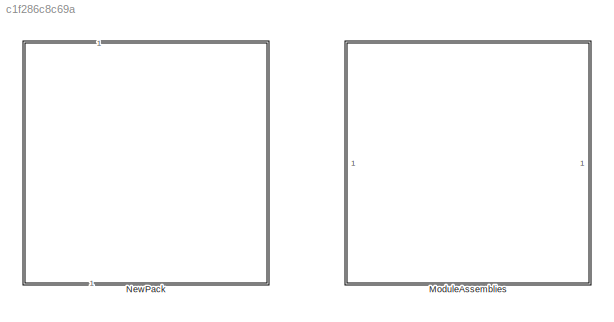
MODEL slx_c1f286c8c69a
KIND library
CONFIG AbsTol = auto
CONFIG EnableMultiTasking = off
CONFIG FixedStep = auto
CONFIG MaxStep = auto
CONFIG MinStep = auto
CONFIG RelTol = 1e-3
CONFIG SampleTimeConstraint = Unconstrained
CONFIG SolverName = VariableStepAuto
CONFIG StartTime = 0.0
CONFIG StopTime = 10.0
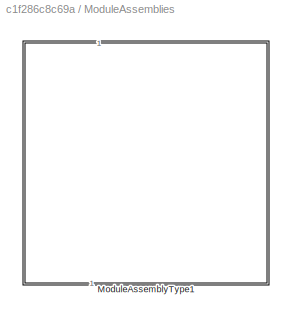
BLOCK [SubSystem] ModuleAssemblies
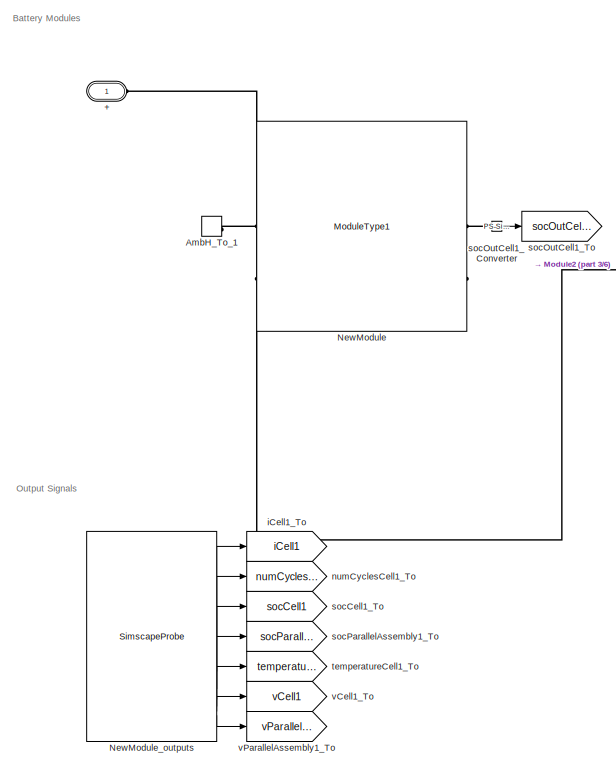
[diagram: ModuleAssemblies/ModuleAssemblyType1 - part 1/6, top left region]
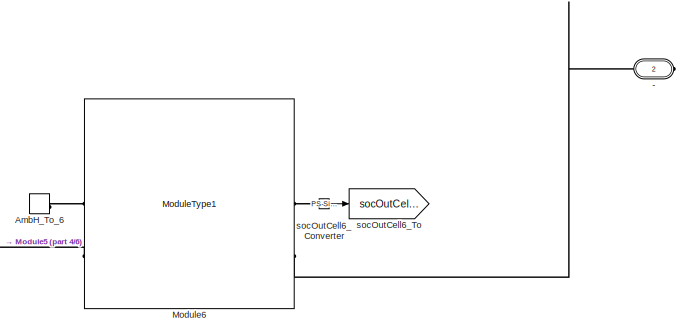
[diagram: ModuleAssemblies/ModuleAssemblyType1 - part 2/6, top right region]
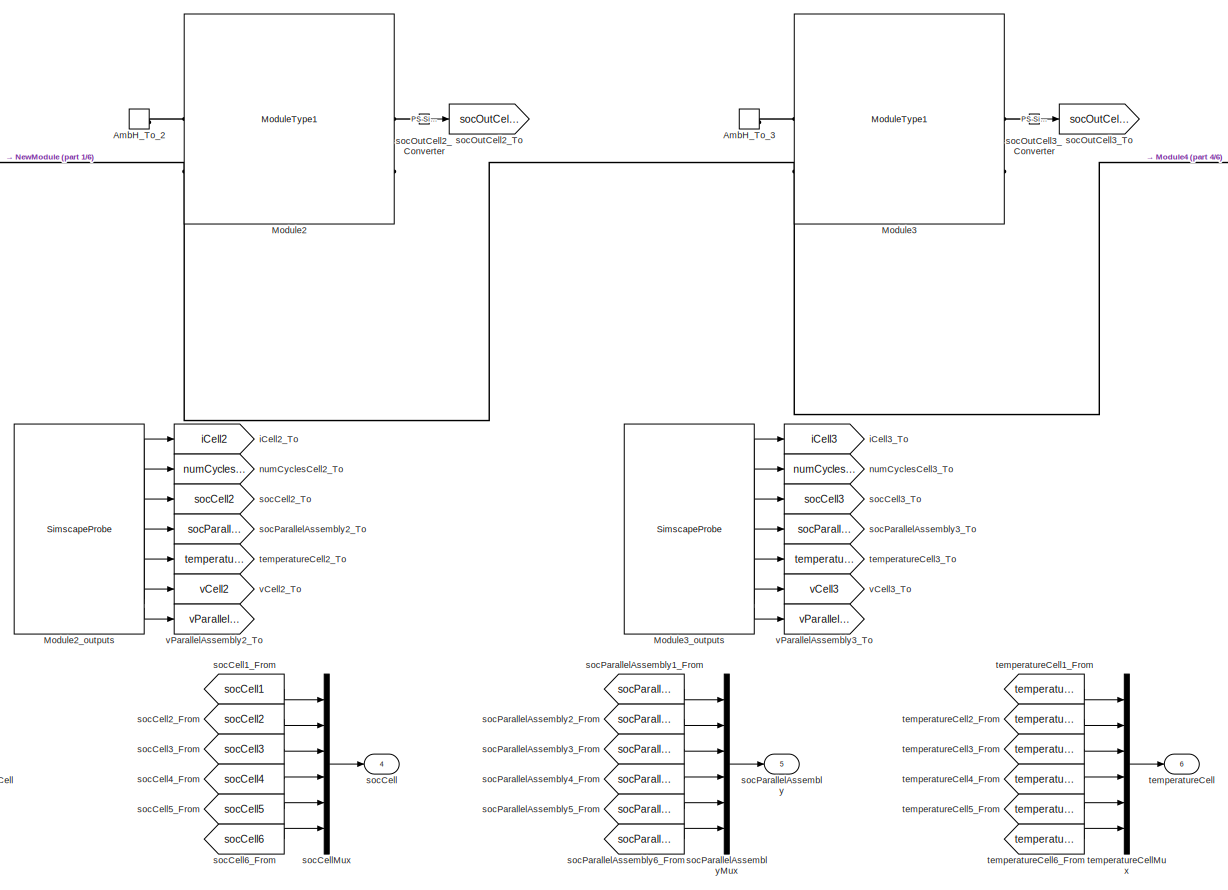
[diagram: ModuleAssemblies/ModuleAssemblyType1 - part 3/6, central region]
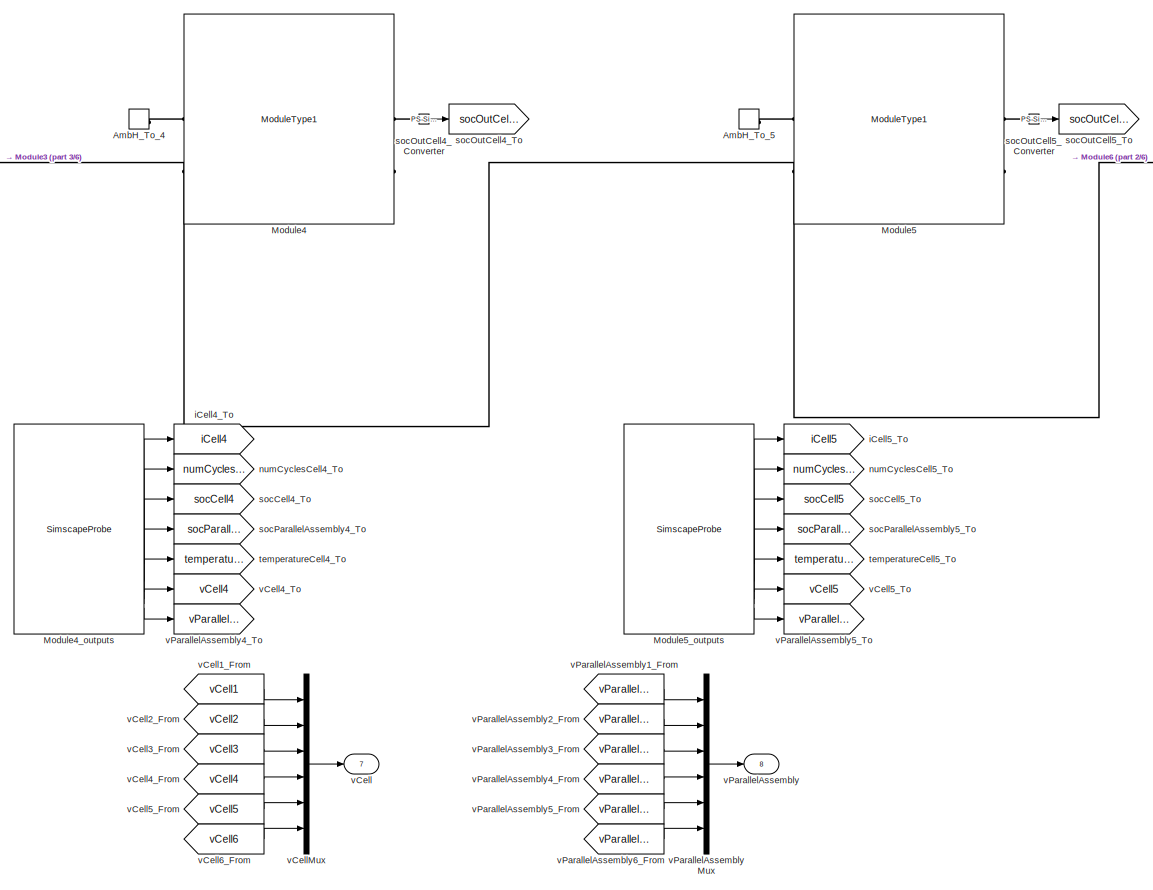
[diagram: ModuleAssemblies/ModuleAssemblyType1 - part 4/6, central region]
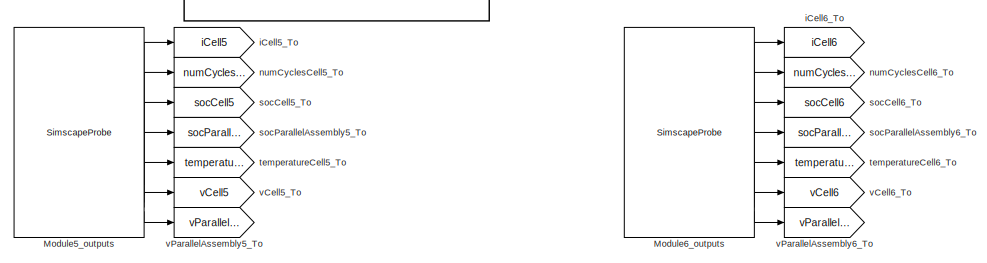
[diagram: ModuleAssemblies/ModuleAssemblyType1 - part 5/6, middle right region]
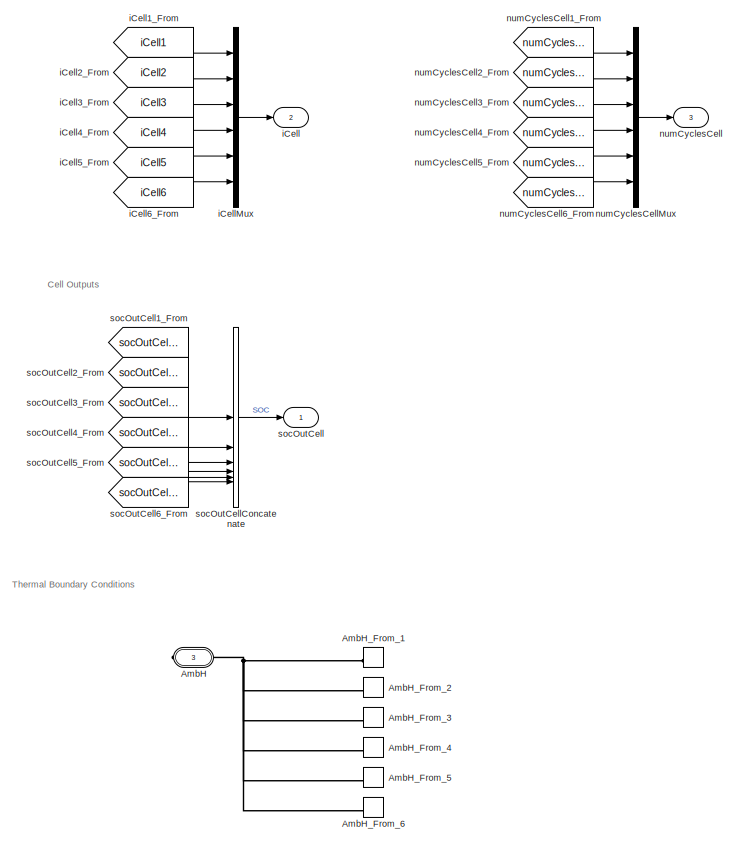
[diagram: ModuleAssemblies/ModuleAssemblyType1 - part 6/6, bottom left region]
BLOCK [SubSystem] ModuleAssemblies/ModuleAssemblyType1
  CopyFcn = battery_builder_rtmsupport('copyfcn',gcbh);
  LoadFcn = battery_builder_rtmsupport('loadfcn',gcbh);
  PortSchema = {"entries":[{"content":{"sides":[{"content":{"connectorIds":["LConn1"]},"type":"ConnectorPlacement.EquallySpacedRectSide","uuid":"dc7d36c4-4c89-4b98-861c-dbd258b1b0ba"},{"content":{"connectorIds":["RConn1","RConn2"],"side":"RIGHT"},"type":"ConnectorPlacement.EquallySpacedRectSide","uuid":"18c0289f-27a4-4c51-8919-c88b087c6b51"},{"content":{"side":"TOP"},"type":"ConnectorPlacement.EquallySpacedRectS...<+435ch>  <repeated x3 — deduplicated; at blocks: ModuleAssemblyType1, NewPack, NewModuleAssembly>
  PreCopyFcn = battery_builder_rtmsupport('precopyfcn',gcbh);
  PreDeleteFcn = battery_builder_rtmsupport('predeletefcn',gcbh);
BLOCK [PMIOPort] ModuleAssemblies/ModuleAssemblyType1/+
  Side = Left
BLOCK [PMIOPort] ModuleAssemblies/ModuleAssemblyType1/-
  Port = 2
  Side = Right
BLOCK [PMIOPort] ModuleAssemblies/ModuleAssemblyType1/AmbH
  ConnectionType = Connection: foundation.thermal.thermal
  Port = 3
  Side = Right
BLOCK [ConnectionLabel] ModuleAssemblies/ModuleAssemblyType1/AmbH_From_1
  Label = ambH_1
BLOCK [ConnectionLabel] ModuleAssemblies/ModuleAssemblyType1/AmbH_From_2
  Label = ambH_2
BLOCK [ConnectionLabel] ModuleAssemblies/ModuleAssemblyType1/AmbH_From_3
  Label = ambH_3
BLOCK [ConnectionLabel] ModuleAssemblies/ModuleAssemblyType1/AmbH_From_4
  Label = ambH_4
BLOCK [ConnectionLabel] ModuleAssemblies/ModuleAssemblyType1/AmbH_From_5
  Label = ambH_5
BLOCK [ConnectionLabel] ModuleAssemblies/ModuleAssemblyType1/AmbH_From_6
  Label = ambH_6
BLOCK [ConnectionLabel] ModuleAssemblies/ModuleAssemblyType1/AmbH_To_1
  Label = ambH_1
BLOCK [ConnectionLabel] ModuleAssemblies/ModuleAssemblyType1/AmbH_To_2
  Label = ambH_2
BLOCK [ConnectionLabel] ModuleAssemblies/ModuleAssemblyType1/AmbH_To_3
  Label = ambH_3
BLOCK [ConnectionLabel] ModuleAssemblies/ModuleAssemblyType1/AmbH_To_4
  Label = ambH_4
BLOCK [ConnectionLabel] ModuleAssemblies/ModuleAssemblyType1/AmbH_To_5
  Label = ambH_5
BLOCK [ConnectionLabel] ModuleAssemblies/ModuleAssemblyType1/AmbH_To_6
  Label = ambH_6
BLOCK [Reference] ModuleAssemblies/ModuleAssemblyType1/Module2  REF=Batteries_10s2p_lib/Modules/ModuleType1
  SourceBlock = Batteries_10s2p_lib/Modules/ModuleType1
  SourceType = ModuleType1
BLOCK [SimscapeProbe] ModuleAssemblies/ModuleAssemblyType1/Module2_outputs
  BoundBlock = 4
  Variables = {"iCell":{"Unit":"A","PortLabel":"iCell","Probing":"ON"},"numCyclesCell":{"Unit":"1","PortLabel":"numCyclesCell","Probing":"ON"},"socCell":{"Unit":"1","PortLabel":"socCell","Probing":"ON"},"socParallelAssembly":{"Unit":"1","PortLabel":"socParallelAssembly","Probing":"ON"},"temperatureCell":{"Unit":"K","PortLabel":"temperatureCell","Probing":"ON"},"vCell":{"Unit":"V","PortLabel":"vCell","Probing":"...<+85ch>  <repeated x12 — deduplicated; at blocks: Module2_outputs, Module3_outputs, Module4_outputs, Module5_outputs, Module6_outputs, NewModule_outputs>
BLOCK [Reference] ModuleAssemblies/ModuleAssemblyType1/Module3  REF=Batteries_10s2p_lib/Modules/ModuleType1
  SourceBlock = Batteries_10s2p_lib/Modules/ModuleType1
  SourceType = ModuleType1
BLOCK [SimscapeProbe] ModuleAssemblies/ModuleAssemblyType1/Module3_outputs
  BoundBlock = 5
BLOCK [Reference] ModuleAssemblies/ModuleAssemblyType1/Module4  REF=Batteries_10s2p_lib/Modules/ModuleType1
  SourceBlock = Batteries_10s2p_lib/Modules/ModuleType1
  SourceType = ModuleType1
BLOCK [SimscapeProbe] ModuleAssemblies/ModuleAssemblyType1/Module4_outputs
  BoundBlock = 6
BLOCK [Reference] ModuleAssemblies/ModuleAssemblyType1/Module5  REF=Batteries_10s2p_lib/Modules/ModuleType1
  SourceBlock = Batteries_10s2p_lib/Modules/ModuleType1
  SourceType = ModuleType1
BLOCK [SimscapeProbe] ModuleAssemblies/ModuleAssemblyType1/Module5_outputs
  BoundBlock = 7
BLOCK [Reference] ModuleAssemblies/ModuleAssemblyType1/Module6  REF=Batteries_10s2p_lib/Modules/ModuleType1
  SourceBlock = Batteries_10s2p_lib/Modules/ModuleType1
  SourceType = ModuleType1
BLOCK [SimscapeProbe] ModuleAssemblies/ModuleAssemblyType1/Module6_outputs
  BoundBlock = 8
BLOCK [Reference] ModuleAssemblies/ModuleAssemblyType1/NewModule  REF=Batteries_10s2p_lib/Modules/ModuleType1
  SourceBlock = Batteries_10s2p_lib/Modules/ModuleType1
  SourceType = ModuleType1
BLOCK [SimscapeProbe] ModuleAssemblies/ModuleAssemblyType1/NewModule_outputs
  BoundBlock = 3
BLOCK [Outport] ModuleAssemblies/ModuleAssemblyType1/iCell
  Port = 2
BLOCK [From] ModuleAssemblies/ModuleAssemblyType1/iCell1_From
  GotoTag = iCell1
BLOCK [Goto] ModuleAssemblies/ModuleAssemblyType1/iCell1_To
  GotoTag = iCell1
BLOCK [From] ModuleAssemblies/ModuleAssemblyType1/iCell2_From
  GotoTag = iCell2
BLOCK [Goto] ModuleAssemblies/ModuleAssemblyType1/iCell2_To
  GotoTag = iCell2
BLOCK [From] ModuleAssemblies/ModuleAssemblyType1/iCell3_From
  GotoTag = iCell3
BLOCK [Goto] ModuleAssemblies/ModuleAssemblyType1/iCell3_To
  GotoTag = iCell3
BLOCK [From] ModuleAssemblies/ModuleAssemblyType1/iCell4_From
  GotoTag = iCell4
BLOCK [Goto] ModuleAssemblies/ModuleAssemblyType1/iCell4_To
  GotoTag = iCell4
BLOCK [From] ModuleAssemblies/ModuleAssemblyType1/iCell5_From
  GotoTag = iCell5
BLOCK [Goto] ModuleAssemblies/ModuleAssemblyType1/iCell5_To
  GotoTag = iCell5
BLOCK [From] ModuleAssemblies/ModuleAssemblyType1/iCell6_From
  GotoTag = iCell6
BLOCK [Goto] ModuleAssemblies/ModuleAssemblyType1/iCell6_To
  GotoTag = iCell6
BLOCK [Mux] ModuleAssemblies/ModuleAssemblyType1/iCellMux
  DisplayOption = bar
  Inputs = 6
BLOCK [Outport] ModuleAssemblies/ModuleAssemblyType1/numCyclesCell
  Port = 3
BLOCK [From] ModuleAssemblies/ModuleAssemblyType1/numCyclesCell1_From
  GotoTag = numCyclesCell1
BLOCK [Goto] ModuleAssemblies/ModuleAssemblyType1/numCyclesCell1_To
  GotoTag = numCyclesCell1
BLOCK [From] ModuleAssemblies/ModuleAssemblyType1/numCyclesCell2_From
  GotoTag = numCyclesCell2
BLOCK [Goto] ModuleAssemblies/ModuleAssemblyType1/numCyclesCell2_To
  GotoTag = numCyclesCell2
BLOCK [From] ModuleAssemblies/ModuleAssemblyType1/numCyclesCell3_From
  GotoTag = numCyclesCell3
BLOCK [Goto] ModuleAssemblies/ModuleAssemblyType1/numCyclesCell3_To
  GotoTag = numCyclesCell3
BLOCK [From] ModuleAssemblies/ModuleAssemblyType1/numCyclesCell4_From
  GotoTag = numCyclesCell4
BLOCK [Goto] ModuleAssemblies/ModuleAssemblyType1/numCyclesCell4_To
  GotoTag = numCyclesCell4
BLOCK [From] ModuleAssemblies/ModuleAssemblyType1/numCyclesCell5_From
  GotoTag = numCyclesCell5
BLOCK [Goto] ModuleAssemblies/ModuleAssemblyType1/numCyclesCell5_To
  GotoTag = numCyclesCell5
BLOCK [From] ModuleAssemblies/ModuleAssemblyType1/numCyclesCell6_From
  GotoTag = numCyclesCell6
BLOCK [Goto] ModuleAssemblies/ModuleAssemblyType1/numCyclesCell6_To
  GotoTag = numCyclesCell6
BLOCK [Mux] ModuleAssemblies/ModuleAssemblyType1/numCyclesCellMux
  DisplayOption = bar
  Inputs = 6
BLOCK [Outport] ModuleAssemblies/ModuleAssemblyType1/socCell
  Port = 4
BLOCK [From] ModuleAssemblies/ModuleAssemblyType1/socCell1_From
  GotoTag = socCell1
BLOCK [Goto] ModuleAssemblies/ModuleAssemblyType1/socCell1_To
  GotoTag = socCell1
BLOCK [From] ModuleAssemblies/ModuleAssemblyType1/socCell2_From
  GotoTag = socCell2
BLOCK [Goto] ModuleAssemblies/ModuleAssemblyType1/socCell2_To
  GotoTag = socCell2
BLOCK [From] ModuleAssemblies/ModuleAssemblyType1/socCell3_From
  GotoTag = socCell3
BLOCK [Goto] ModuleAssemblies/ModuleAssemblyType1/socCell3_To
  GotoTag = socCell3
BLOCK [From] ModuleAssemblies/ModuleAssemblyType1/socCell4_From
  GotoTag = socCell4
BLOCK [Goto] ModuleAssemblies/ModuleAssemblyType1/socCell4_To
  GotoTag = socCell4
BLOCK [From] ModuleAssemblies/ModuleAssemblyType1/socCell5_From
  GotoTag = socCell5
BLOCK [Goto] ModuleAssemblies/ModuleAssemblyType1/socCell5_To
  GotoTag = socCell5
BLOCK [From] ModuleAssemblies/ModuleAssemblyType1/socCell6_From
  GotoTag = socCell6
BLOCK [Goto] ModuleAssemblies/ModuleAssemblyType1/socCell6_To
  GotoTag = socCell6
BLOCK [Mux] ModuleAssemblies/ModuleAssemblyType1/socCellMux
  DisplayOption = bar
  Inputs = 6
BLOCK [Outport] ModuleAssemblies/ModuleAssemblyType1/socOutCell
  IconDisplay = Signal name
BLOCK [Reference] ModuleAssemblies/ModuleAssemblyType1/socOutCell1_Converter  REF=nesl_utility/PS-Simulink
Converter
  SourceBlock = nesl_utility/PS-Simulink\nConverter
  SourceType = PS-Simulink\nConverter
BLOCK [From] ModuleAssemblies/ModuleAssemblyType1/socOutCell1_From
  GotoTag = socOutCell1
BLOCK [Goto] ModuleAssemblies/ModuleAssemblyType1/socOutCell1_To
  GotoTag = socOutCell1
BLOCK [Reference] ModuleAssemblies/ModuleAssemblyType1/socOutCell2_Converter  REF=nesl_utility/PS-Simulink
Converter
  SourceBlock = nesl_utility/PS-Simulink\nConverter
  SourceType = PS-Simulink\nConverter
BLOCK [From] ModuleAssemblies/ModuleAssemblyType1/socOutCell2_From
  GotoTag = socOutCell2
BLOCK [Goto] ModuleAssemblies/ModuleAssemblyType1/socOutCell2_To
  GotoTag = socOutCell2
BLOCK [Reference] ModuleAssemblies/ModuleAssemblyType1/socOutCell3_Converter  REF=nesl_utility/PS-Simulink
Converter
  SourceBlock = nesl_utility/PS-Simulink\nConverter
  SourceType = PS-Simulink\nConverter
BLOCK [From] ModuleAssemblies/ModuleAssemblyType1/socOutCell3_From
  GotoTag = socOutCell3
BLOCK [Goto] ModuleAssemblies/ModuleAssemblyType1/socOutCell3_To
  GotoTag = socOutCell3
BLOCK [Reference] ModuleAssemblies/ModuleAssemblyType1/socOutCell4_Converter  REF=nesl_utility/PS-Simulink
Converter
  SourceBlock = nesl_utility/PS-Simulink\nConverter
  SourceType = PS-Simulink\nConverter
BLOCK [From] ModuleAssemblies/ModuleAssemblyType1/socOutCell4_From
  GotoTag = socOutCell4
BLOCK [Goto] ModuleAssemblies/ModuleAssemblyType1/socOutCell4_To
  GotoTag = socOutCell4
BLOCK [Reference] ModuleAssemblies/ModuleAssemblyType1/socOutCell5_Converter  REF=nesl_utility/PS-Simulink
Converter
  SourceBlock = nesl_utility/PS-Simulink\nConverter
  SourceType = PS-Simulink\nConverter
BLOCK [From] ModuleAssemblies/ModuleAssemblyType1/socOutCell5_From
  GotoTag = socOutCell5
BLOCK [Goto] ModuleAssemblies/ModuleAssemblyType1/socOutCell5_To
  GotoTag = socOutCell5
BLOCK [Reference] ModuleAssemblies/ModuleAssemblyType1/socOutCell6_Converter  REF=nesl_utility/PS-Simulink
Converter
  SourceBlock = nesl_utility/PS-Simulink\nConverter
  SourceType = PS-Simulink\nConverter
BLOCK [From] ModuleAssemblies/ModuleAssemblyType1/socOutCell6_From
  GotoTag = socOutCell6
BLOCK [Goto] ModuleAssemblies/ModuleAssemblyType1/socOutCell6_To
  GotoTag = socOutCell6
BLOCK [Concatenate] ModuleAssemblies/ModuleAssemblyType1/socOutCellConcatenate
  ConcatenateDimension = 2
  Mode = Multidimensional array
  NumInputs = 6
BLOCK [Outport] ModuleAssemblies/ModuleAssemblyType1/socParallelAssembly
  Port = 5
BLOCK [From] ModuleAssemblies/ModuleAssemblyType1/socParallelAssembly1_From
  GotoTag = socParallelAssembly1
BLOCK [Goto] ModuleAssemblies/ModuleAssemblyType1/socParallelAssembly1_To
  GotoTag = socParallelAssembly1
BLOCK [From] ModuleAssemblies/ModuleAssemblyType1/socParallelAssembly2_From
  GotoTag = socParallelAssembly2
BLOCK [Goto] ModuleAssemblies/ModuleAssemblyType1/socParallelAssembly2_To
  GotoTag = socParallelAssembly2
BLOCK [From] ModuleAssemblies/ModuleAssemblyType1/socParallelAssembly3_From
  GotoTag = socParallelAssembly3
BLOCK [Goto] ModuleAssemblies/ModuleAssemblyType1/socParallelAssembly3_To
  GotoTag = socParallelAssembly3
BLOCK [From] ModuleAssemblies/ModuleAssemblyType1/socParallelAssembly4_From
  GotoTag = socParallelAssembly4
BLOCK [Goto] ModuleAssemblies/ModuleAssemblyType1/socParallelAssembly4_To
  GotoTag = socParallelAssembly4
BLOCK [From] ModuleAssemblies/ModuleAssemblyType1/socParallelAssembly5_From
  GotoTag = socParallelAssembly5
BLOCK [Goto] ModuleAssemblies/ModuleAssemblyType1/socParallelAssembly5_To
  GotoTag = socParallelAssembly5
BLOCK [From] ModuleAssemblies/ModuleAssemblyType1/socParallelAssembly6_From
  GotoTag = socParallelAssembly6
BLOCK [Goto] ModuleAssemblies/ModuleAssemblyType1/socParallelAssembly6_To
  GotoTag = socParallelAssembly6
BLOCK [Mux] ModuleAssemblies/ModuleAssemblyType1/socParallelAssemblyMux
  DisplayOption = bar
  Inputs = 6
BLOCK [Outport] ModuleAssemblies/ModuleAssemblyType1/temperatureCell
  Port = 6
BLOCK [From] ModuleAssemblies/ModuleAssemblyType1/temperatureCell1_From
  GotoTag = temperatureCell1
BLOCK [Goto] ModuleAssemblies/ModuleAssemblyType1/temperatureCell1_To
  GotoTag = temperatureCell1
BLOCK [From] ModuleAssemblies/ModuleAssemblyType1/temperatureCell2_From
  GotoTag = temperatureCell2
BLOCK [Goto] ModuleAssemblies/ModuleAssemblyType1/temperatureCell2_To
  GotoTag = temperatureCell2
BLOCK [From] ModuleAssemblies/ModuleAssemblyType1/temperatureCell3_From
  GotoTag = temperatureCell3
BLOCK [Goto] ModuleAssemblies/ModuleAssemblyType1/temperatureCell3_To
  GotoTag = temperatureCell3
BLOCK [From] ModuleAssemblies/ModuleAssemblyType1/temperatureCell4_From
  GotoTag = temperatureCell4
BLOCK [Goto] ModuleAssemblies/ModuleAssemblyType1/temperatureCell4_To
  GotoTag = temperatureCell4
BLOCK [From] ModuleAssemblies/ModuleAssemblyType1/temperatureCell5_From
  GotoTag = temperatureCell5
BLOCK [Goto] ModuleAssemblies/ModuleAssemblyType1/temperatureCell5_To
  GotoTag = temperatureCell5
BLOCK [From] ModuleAssemblies/ModuleAssemblyType1/temperatureCell6_From
  GotoTag = temperatureCell6
BLOCK [Goto] ModuleAssemblies/ModuleAssemblyType1/temperatureCell6_To
  GotoTag = temperatureCell6
BLOCK [Mux] ModuleAssemblies/ModuleAssemblyType1/temperatureCellMux
  DisplayOption = bar
  Inputs = 6
BLOCK [Outport] ModuleAssemblies/ModuleAssemblyType1/vCell
  Port = 7
BLOCK [From] ModuleAssemblies/ModuleAssemblyType1/vCell1_From
  GotoTag = vCell1
BLOCK [Goto] ModuleAssemblies/ModuleAssemblyType1/vCell1_To
  GotoTag = vCell1
BLOCK [From] ModuleAssemblies/ModuleAssemblyType1/vCell2_From
  GotoTag = vCell2
BLOCK [Goto] ModuleAssemblies/ModuleAssemblyType1/vCell2_To
  GotoTag = vCell2
BLOCK [From] ModuleAssemblies/ModuleAssemblyType1/vCell3_From
  GotoTag = vCell3
BLOCK [Goto] ModuleAssemblies/ModuleAssemblyType1/vCell3_To
  GotoTag = vCell3
BLOCK [From] ModuleAssemblies/ModuleAssemblyType1/vCell4_From
  GotoTag = vCell4
BLOCK [Goto] ModuleAssemblies/ModuleAssemblyType1/vCell4_To
  GotoTag = vCell4
BLOCK [From] ModuleAssemblies/ModuleAssemblyType1/vCell5_From
  GotoTag = vCell5
BLOCK [Goto] ModuleAssemblies/ModuleAssemblyType1/vCell5_To
  GotoTag = vCell5
BLOCK [From] ModuleAssemblies/ModuleAssemblyType1/vCell6_From
  GotoTag = vCell6
BLOCK [Goto] ModuleAssemblies/ModuleAssemblyType1/vCell6_To
  GotoTag = vCell6
BLOCK [Mux] ModuleAssemblies/ModuleAssemblyType1/vCellMux
  DisplayOption = bar
  Inputs = 6
BLOCK [Outport] ModuleAssemblies/ModuleAssemblyType1/vParallelAssembly
  Port = 8
BLOCK [From] ModuleAssemblies/ModuleAssemblyType1/vParallelAssembly1_From
  GotoTag = vParallelAssembly1
BLOCK [Goto] ModuleAssemblies/ModuleAssemblyType1/vParallelAssembly1_To
  GotoTag = vParallelAssembly1
BLOCK [From] ModuleAssemblies/ModuleAssemblyType1/vParallelAssembly2_From
  GotoTag = vParallelAssembly2
BLOCK [Goto] ModuleAssemblies/ModuleAssemblyType1/vParallelAssembly2_To
  GotoTag = vParallelAssembly2
BLOCK [From] ModuleAssemblies/ModuleAssemblyType1/vParallelAssembly3_From
  GotoTag = vParallelAssembly3
BLOCK [Goto] ModuleAssemblies/ModuleAssemblyType1/vParallelAssembly3_To
  GotoTag = vParallelAssembly3
BLOCK [From] ModuleAssemblies/ModuleAssemblyType1/vParallelAssembly4_From
  GotoTag = vParallelAssembly4
BLOCK [Goto] ModuleAssemblies/ModuleAssemblyType1/vParallelAssembly4_To
  GotoTag = vParallelAssembly4
BLOCK [From] ModuleAssemblies/ModuleAssemblyType1/vParallelAssembly5_From
  GotoTag = vParallelAssembly5
BLOCK [Goto] ModuleAssemblies/ModuleAssemblyType1/vParallelAssembly5_To
  GotoTag = vParallelAssembly5
BLOCK [From] ModuleAssemblies/ModuleAssemblyType1/vParallelAssembly6_From
  GotoTag = vParallelAssembly6
BLOCK [Goto] ModuleAssemblies/ModuleAssemblyType1/vParallelAssembly6_To
  GotoTag = vParallelAssembly6
BLOCK [Mux] ModuleAssemblies/ModuleAssemblyType1/vParallelAssemblyMux
  DisplayOption = bar
  Inputs = 6
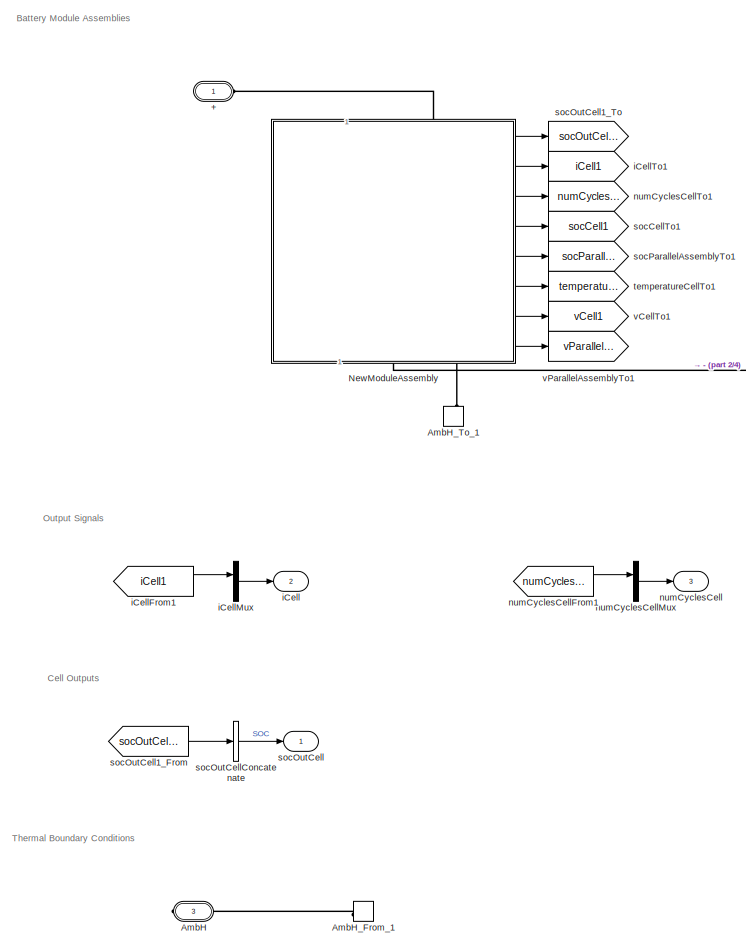
[diagram: NewPack - part 1/4, left side, full height]
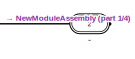
[diagram: NewPack - part 2/4, top right region]
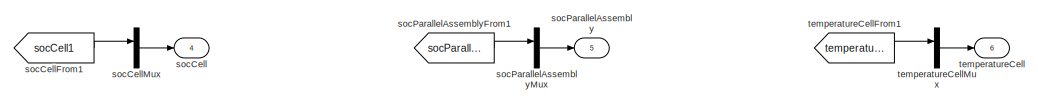
[diagram: NewPack - part 3/4, central region]
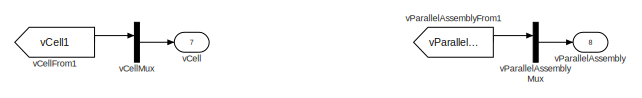
[diagram: NewPack - part 4/4, middle right region]
BLOCK [SubSystem] NewPack
  CopyFcn = battery_builder_rtmsupport('copyfcn',gcbh);
  LoadFcn = battery_builder_rtmsupport('loadfcn',gcbh);
  PreCopyFcn = battery_builder_rtmsupport('precopyfcn',gcbh);
  PreDeleteFcn = battery_builder_rtmsupport('predeletefcn',gcbh);
BLOCK [PMIOPort] NewPack/+
  Side = Left
BLOCK [PMIOPort] NewPack/-
  Port = 2
  Side = Right
BLOCK [PMIOPort] NewPack/AmbH
  ConnectionType = Connection: foundation.thermal.thermal
  Port = 3
  Side = Right
BLOCK [ConnectionLabel] NewPack/AmbH_From_1
  Label = ambH_1
BLOCK [ConnectionLabel] NewPack/AmbH_To_1
  Label = ambH_1
  NameLocation = right
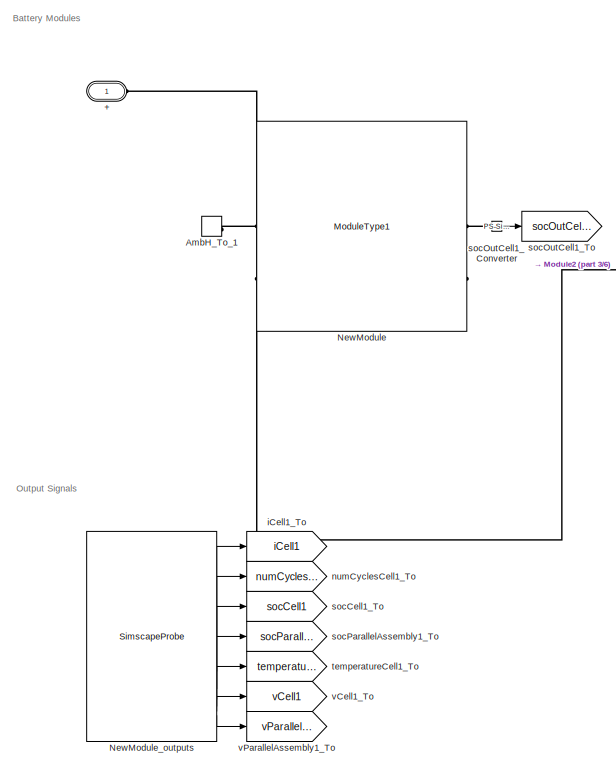
[diagram: NewPack/NewModuleAssembly - part 1/6, top left region]
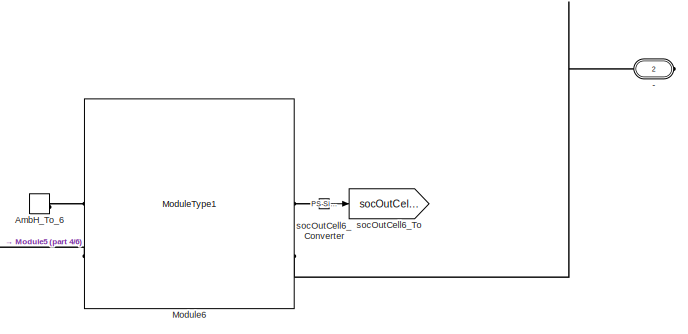
[diagram: NewPack/NewModuleAssembly - part 2/6, top right region]
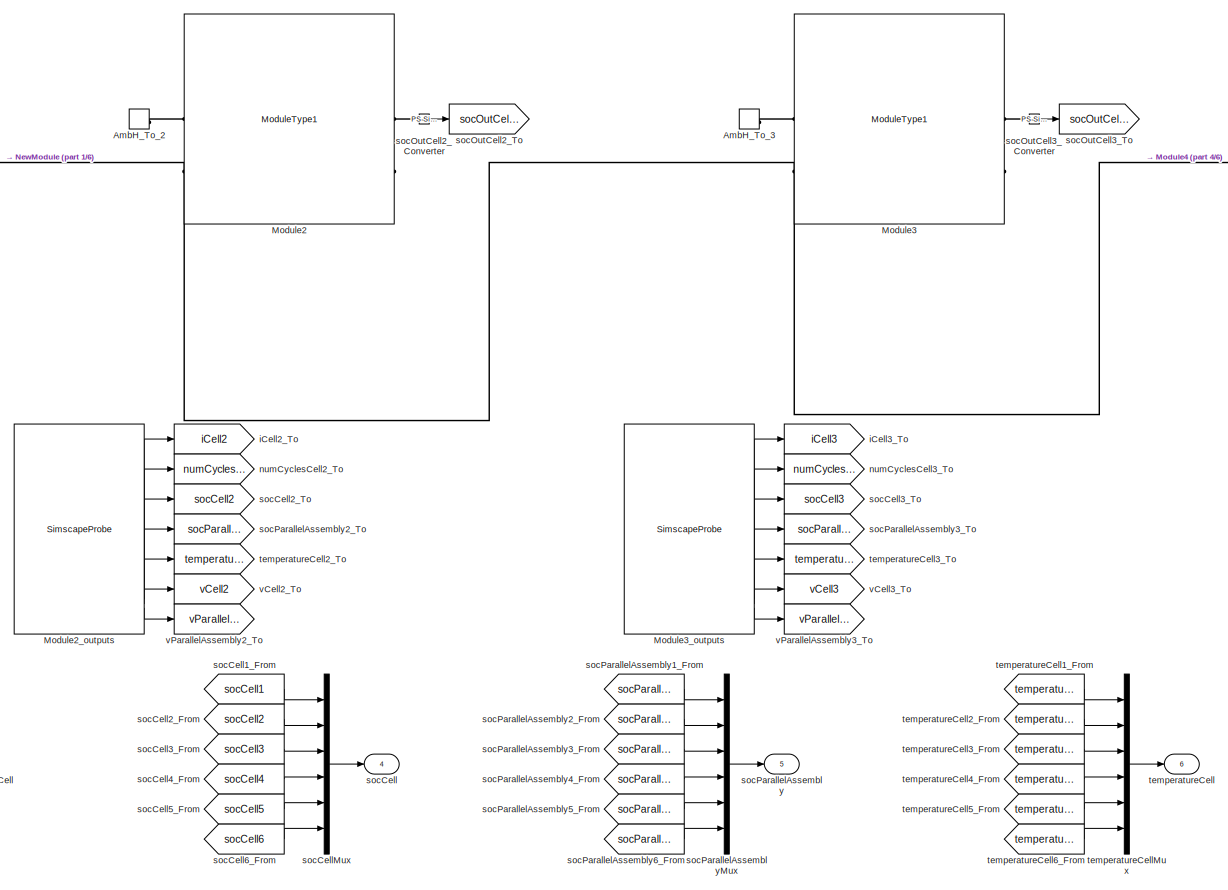
[diagram: NewPack/NewModuleAssembly - part 3/6, central region]
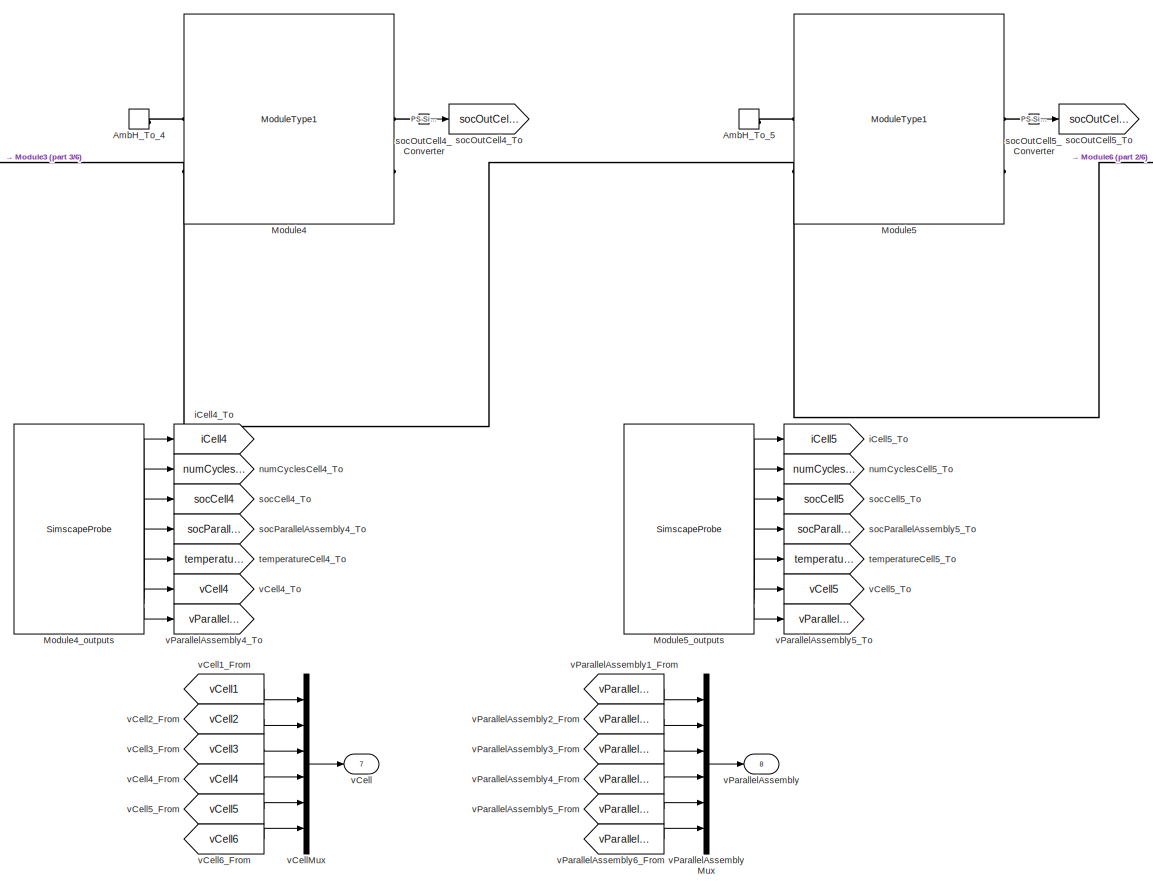
[diagram: NewPack/NewModuleAssembly - part 4/6, central region]
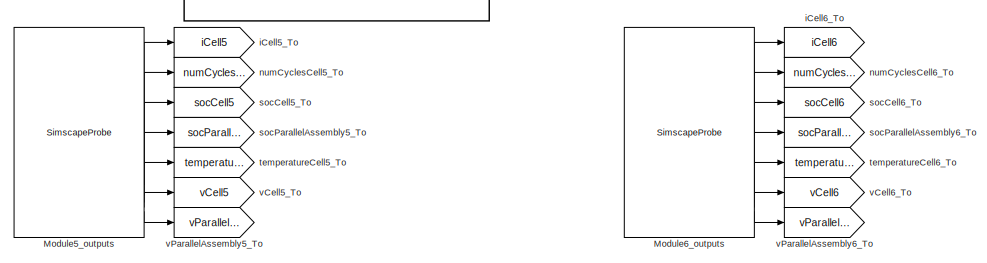
[diagram: NewPack/NewModuleAssembly - part 5/6, middle right region]
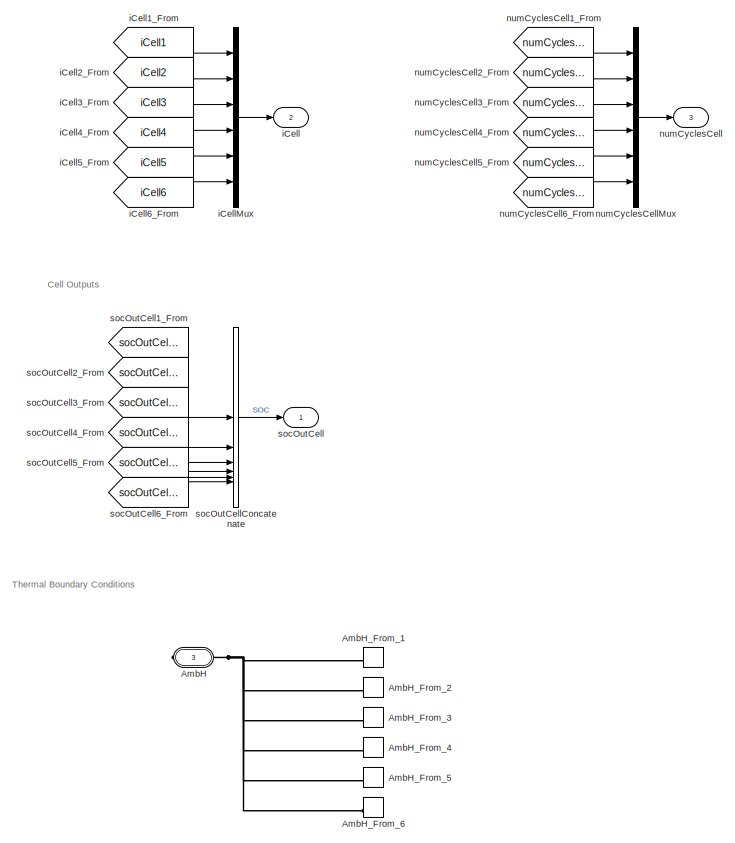
[diagram: NewPack/NewModuleAssembly - part 6/6, bottom left region]
BLOCK [SubSystem] NewPack/NewModuleAssembly
  CopyFcn = battery_builder_rtmsupport('copyfcn',gcbh);
  LoadFcn = battery_builder_rtmsupport('loadfcn',gcbh);
  PreCopyFcn = battery_builder_rtmsupport('precopyfcn',gcbh);
  PreDeleteFcn = battery_builder_rtmsupport('predeletefcn',gcbh);
BLOCK [PMIOPort] NewPack/NewModuleAssembly/+
  Side = Left
BLOCK [PMIOPort] NewPack/NewModuleAssembly/-
  Port = 2
  Side = Right
BLOCK [PMIOPort] NewPack/NewModuleAssembly/AmbH
  ConnectionType = Connection: foundation.thermal.thermal
  Port = 3
  Side = Right
BLOCK [ConnectionLabel] NewPack/NewModuleAssembly/AmbH_From_1
  Label = ambH_1
BLOCK [ConnectionLabel] NewPack/NewModuleAssembly/AmbH_From_2
  Label = ambH_2
BLOCK [ConnectionLabel] NewPack/NewModuleAssembly/AmbH_From_3
  Label = ambH_3
BLOCK [ConnectionLabel] NewPack/NewModuleAssembly/AmbH_From_4
  Label = ambH_4
BLOCK [ConnectionLabel] NewPack/NewModuleAssembly/AmbH_From_5
  Label = ambH_5
BLOCK [ConnectionLabel] NewPack/NewModuleAssembly/AmbH_From_6
  Label = ambH_6
BLOCK [ConnectionLabel] NewPack/NewModuleAssembly/AmbH_To_1
  Label = ambH_1
BLOCK [ConnectionLabel] NewPack/NewModuleAssembly/AmbH_To_2
  Label = ambH_2
BLOCK [ConnectionLabel] NewPack/NewModuleAssembly/AmbH_To_3
  Label = ambH_3
BLOCK [ConnectionLabel] NewPack/NewModuleAssembly/AmbH_To_4
  Label = ambH_4
BLOCK [ConnectionLabel] NewPack/NewModuleAssembly/AmbH_To_5
  Label = ambH_5
BLOCK [ConnectionLabel] NewPack/NewModuleAssembly/AmbH_To_6
  Label = ambH_6
BLOCK [Reference] NewPack/NewModuleAssembly/Module2  REF=Batteries_10s2p_lib/Modules/ModuleType1
  SourceBlock = Batteries_10s2p_lib/Modules/ModuleType1
  SourceType = ModuleType1
BLOCK [SimscapeProbe] NewPack/NewModuleAssembly/Module2_outputs
  BoundBlock = 166
BLOCK [Reference] NewPack/NewModuleAssembly/Module3  REF=Batteries_10s2p_lib/Modules/ModuleType1
  SourceBlock = Batteries_10s2p_lib/Modules/ModuleType1
  SourceType = ModuleType1
BLOCK [SimscapeProbe] NewPack/NewModuleAssembly/Module3_outputs
  BoundBlock = 168
BLOCK [Reference] NewPack/NewModuleAssembly/Module4  REF=Batteries_10s2p_lib/Modules/ModuleType1
  SourceBlock = Batteries_10s2p_lib/Modules/ModuleType1
  SourceType = ModuleType1
BLOCK [SimscapeProbe] NewPack/NewModuleAssembly/Module4_outputs
  BoundBlock = 170
BLOCK [Reference] NewPack/NewModuleAssembly/Module5  REF=Batteries_10s2p_lib/Modules/ModuleType1
  SourceBlock = Batteries_10s2p_lib/Modules/ModuleType1
  SourceType = ModuleType1
BLOCK [SimscapeProbe] NewPack/NewModuleAssembly/Module5_outputs
  BoundBlock = 172
BLOCK [Reference] NewPack/NewModuleAssembly/Module6  REF=Batteries_10s2p_lib/Modules/ModuleType1
  SourceBlock = Batteries_10s2p_lib/Modules/ModuleType1
  SourceType = ModuleType1
BLOCK [SimscapeProbe] NewPack/NewModuleAssembly/Module6_outputs
  BoundBlock = 174
BLOCK [Reference] NewPack/NewModuleAssembly/NewModule  REF=Batteries_10s2p_lib/Modules/ModuleType1
  SourceBlock = Batteries_10s2p_lib/Modules/ModuleType1
  SourceType = ModuleType1
BLOCK [SimscapeProbe] NewPack/NewModuleAssembly/NewModule_outputs
  BoundBlock = 176
BLOCK [Outport] NewPack/NewModuleAssembly/iCell
  Port = 2
BLOCK [From] NewPack/NewModuleAssembly/iCell1_From
  GotoTag = iCell1
BLOCK [Goto] NewPack/NewModuleAssembly/iCell1_To
  GotoTag = iCell1
BLOCK [From] NewPack/NewModuleAssembly/iCell2_From
  GotoTag = iCell2
BLOCK [Goto] NewPack/NewModuleAssembly/iCell2_To
  GotoTag = iCell2
BLOCK [From] NewPack/NewModuleAssembly/iCell3_From
  GotoTag = iCell3
BLOCK [Goto] NewPack/NewModuleAssembly/iCell3_To
  GotoTag = iCell3
BLOCK [From] NewPack/NewModuleAssembly/iCell4_From
  GotoTag = iCell4
BLOCK [Goto] NewPack/NewModuleAssembly/iCell4_To
  GotoTag = iCell4
BLOCK [From] NewPack/NewModuleAssembly/iCell5_From
  GotoTag = iCell5
BLOCK [Goto] NewPack/NewModuleAssembly/iCell5_To
  GotoTag = iCell5
BLOCK [From] NewPack/NewModuleAssembly/iCell6_From
  GotoTag = iCell6
BLOCK [Goto] NewPack/NewModuleAssembly/iCell6_To
  GotoTag = iCell6
BLOCK [Mux] NewPack/NewModuleAssembly/iCellMux
  DisplayOption = bar
  Inputs = 6
BLOCK [Outport] NewPack/NewModuleAssembly/numCyclesCell
  Port = 3
BLOCK [From] NewPack/NewModuleAssembly/numCyclesCell1_From
  GotoTag = numCyclesCell1
BLOCK [Goto] NewPack/NewModuleAssembly/numCyclesCell1_To
  GotoTag = numCyclesCell1
BLOCK [From] NewPack/NewModuleAssembly/numCyclesCell2_From
  GotoTag = numCyclesCell2
BLOCK [Goto] NewPack/NewModuleAssembly/numCyclesCell2_To
  GotoTag = numCyclesCell2
BLOCK [From] NewPack/NewModuleAssembly/numCyclesCell3_From
  GotoTag = numCyclesCell3
BLOCK [Goto] NewPack/NewModuleAssembly/numCyclesCell3_To
  GotoTag = numCyclesCell3
BLOCK [From] NewPack/NewModuleAssembly/numCyclesCell4_From
  GotoTag = numCyclesCell4
BLOCK [Goto] NewPack/NewModuleAssembly/numCyclesCell4_To
  GotoTag = numCyclesCell4
BLOCK [From] NewPack/NewModuleAssembly/numCyclesCell5_From
  GotoTag = numCyclesCell5
BLOCK [Goto] NewPack/NewModuleAssembly/numCyclesCell5_To
  GotoTag = numCyclesCell5
BLOCK [From] NewPack/NewModuleAssembly/numCyclesCell6_From
  GotoTag = numCyclesCell6
BLOCK [Goto] NewPack/NewModuleAssembly/numCyclesCell6_To
  GotoTag = numCyclesCell6
BLOCK [Mux] NewPack/NewModuleAssembly/numCyclesCellMux
  DisplayOption = bar
  Inputs = 6
BLOCK [Outport] NewPack/NewModuleAssembly/socCell
  Port = 4
BLOCK [From] NewPack/NewModuleAssembly/socCell1_From
  GotoTag = socCell1
BLOCK [Goto] NewPack/NewModuleAssembly/socCell1_To
  GotoTag = socCell1
BLOCK [From] NewPack/NewModuleAssembly/socCell2_From
  GotoTag = socCell2
BLOCK [Goto] NewPack/NewModuleAssembly/socCell2_To
  GotoTag = socCell2
BLOCK [From] NewPack/NewModuleAssembly/socCell3_From
  GotoTag = socCell3
BLOCK [Goto] NewPack/NewModuleAssembly/socCell3_To
  GotoTag = socCell3
BLOCK [From] NewPack/NewModuleAssembly/socCell4_From
  GotoTag = socCell4
BLOCK [Goto] NewPack/NewModuleAssembly/socCell4_To
  GotoTag = socCell4
BLOCK [From] NewPack/NewModuleAssembly/socCell5_From
  GotoTag = socCell5
BLOCK [Goto] NewPack/NewModuleAssembly/socCell5_To
  GotoTag = socCell5
BLOCK [From] NewPack/NewModuleAssembly/socCell6_From
  GotoTag = socCell6
BLOCK [Goto] NewPack/NewModuleAssembly/socCell6_To
  GotoTag = socCell6
BLOCK [Mux] NewPack/NewModuleAssembly/socCellMux
  DisplayOption = bar
  Inputs = 6
BLOCK [Outport] NewPack/NewModuleAssembly/socOutCell
  IconDisplay = Signal name
BLOCK [Reference] NewPack/NewModuleAssembly/socOutCell1_Converter  REF=nesl_utility/PS-Simulink
Converter
  SourceBlock = nesl_utility/PS-Simulink\nConverter
  SourceType = PS-Simulink\nConverter
BLOCK [From] NewPack/NewModuleAssembly/socOutCell1_From
  GotoTag = socOutCell1
BLOCK [Goto] NewPack/NewModuleAssembly/socOutCell1_To
  GotoTag = socOutCell1
BLOCK [Reference] NewPack/NewModuleAssembly/socOutCell2_Converter  REF=nesl_utility/PS-Simulink
Converter
  SourceBlock = nesl_utility/PS-Simulink\nConverter
  SourceType = PS-Simulink\nConverter
BLOCK [From] NewPack/NewModuleAssembly/socOutCell2_From
  GotoTag = socOutCell2
BLOCK [Goto] NewPack/NewModuleAssembly/socOutCell2_To
  GotoTag = socOutCell2
BLOCK [Reference] NewPack/NewModuleAssembly/socOutCell3_Converter  REF=nesl_utility/PS-Simulink
Converter
  SourceBlock = nesl_utility/PS-Simulink\nConverter
  SourceType = PS-Simulink\nConverter
BLOCK [From] NewPack/NewModuleAssembly/socOutCell3_From
  GotoTag = socOutCell3
BLOCK [Goto] NewPack/NewModuleAssembly/socOutCell3_To
  GotoTag = socOutCell3
BLOCK [Reference] NewPack/NewModuleAssembly/socOutCell4_Converter  REF=nesl_utility/PS-Simulink
Converter
  SourceBlock = nesl_utility/PS-Simulink\nConverter
  SourceType = PS-Simulink\nConverter
BLOCK [From] NewPack/NewModuleAssembly/socOutCell4_From
  GotoTag = socOutCell4
BLOCK [Goto] NewPack/NewModuleAssembly/socOutCell4_To
  GotoTag = socOutCell4
BLOCK [Reference] NewPack/NewModuleAssembly/socOutCell5_Converter  REF=nesl_utility/PS-Simulink
Converter
  SourceBlock = nesl_utility/PS-Simulink\nConverter
  SourceType = PS-Simulink\nConverter
BLOCK [From] NewPack/NewModuleAssembly/socOutCell5_From
  GotoTag = socOutCell5
BLOCK [Goto] NewPack/NewModuleAssembly/socOutCell5_To
  GotoTag = socOutCell5
BLOCK [Reference] NewPack/NewModuleAssembly/socOutCell6_Converter  REF=nesl_utility/PS-Simulink
Converter
  SourceBlock = nesl_utility/PS-Simulink\nConverter
  SourceType = PS-Simulink\nConverter
BLOCK [From] NewPack/NewModuleAssembly/socOutCell6_From
  GotoTag = socOutCell6
BLOCK [Goto] NewPack/NewModuleAssembly/socOutCell6_To
  GotoTag = socOutCell6
BLOCK [Concatenate] NewPack/NewModuleAssembly/socOutCellConcatenate
  ConcatenateDimension = 2
  Mode = Multidimensional array
  NumInputs = 6
BLOCK [Outport] NewPack/NewModuleAssembly/socParallelAssembly
  Port = 5
BLOCK [From] NewPack/NewModuleAssembly/socParallelAssembly1_From
  GotoTag = socParallelAssembly1
BLOCK [Goto] NewPack/NewModuleAssembly/socParallelAssembly1_To
  GotoTag = socParallelAssembly1
BLOCK [From] NewPack/NewModuleAssembly/socParallelAssembly2_From
  GotoTag = socParallelAssembly2
BLOCK [Goto] NewPack/NewModuleAssembly/socParallelAssembly2_To
  GotoTag = socParallelAssembly2
BLOCK [From] NewPack/NewModuleAssembly/socParallelAssembly3_From
  GotoTag = socParallelAssembly3
BLOCK [Goto] NewPack/NewModuleAssembly/socParallelAssembly3_To
  GotoTag = socParallelAssembly3
BLOCK [From] NewPack/NewModuleAssembly/socParallelAssembly4_From
  GotoTag = socParallelAssembly4
BLOCK [Goto] NewPack/NewModuleAssembly/socParallelAssembly4_To
  GotoTag = socParallelAssembly4
BLOCK [From] NewPack/NewModuleAssembly/socParallelAssembly5_From
  GotoTag = socParallelAssembly5
BLOCK [Goto] NewPack/NewModuleAssembly/socParallelAssembly5_To
  GotoTag = socParallelAssembly5
BLOCK [From] NewPack/NewModuleAssembly/socParallelAssembly6_From
  GotoTag = socParallelAssembly6
BLOCK [Goto] NewPack/NewModuleAssembly/socParallelAssembly6_To
  GotoTag = socParallelAssembly6
BLOCK [Mux] NewPack/NewModuleAssembly/socParallelAssemblyMux
  DisplayOption = bar
  Inputs = 6
BLOCK [Outport] NewPack/NewModuleAssembly/temperatureCell
  Port = 6
BLOCK [From] NewPack/NewModuleAssembly/temperatureCell1_From
  GotoTag = temperatureCell1
BLOCK [Goto] NewPack/NewModuleAssembly/temperatureCell1_To
  GotoTag = temperatureCell1
BLOCK [From] NewPack/NewModuleAssembly/temperatureCell2_From
  GotoTag = temperatureCell2
BLOCK [Goto] NewPack/NewModuleAssembly/temperatureCell2_To
  GotoTag = temperatureCell2
BLOCK [From] NewPack/NewModuleAssembly/temperatureCell3_From
  GotoTag = temperatureCell3
BLOCK [Goto] NewPack/NewModuleAssembly/temperatureCell3_To
  GotoTag = temperatureCell3
BLOCK [From] NewPack/NewModuleAssembly/temperatureCell4_From
  GotoTag = temperatureCell4
BLOCK [Goto] NewPack/NewModuleAssembly/temperatureCell4_To
  GotoTag = temperatureCell4
BLOCK [From] NewPack/NewModuleAssembly/temperatureCell5_From
  GotoTag = temperatureCell5
BLOCK [Goto] NewPack/NewModuleAssembly/temperatureCell5_To
  GotoTag = temperatureCell5
BLOCK [From] NewPack/NewModuleAssembly/temperatureCell6_From
  GotoTag = temperatureCell6
BLOCK [Goto] NewPack/NewModuleAssembly/temperatureCell6_To
  GotoTag = temperatureCell6
BLOCK [Mux] NewPack/NewModuleAssembly/temperatureCellMux
  DisplayOption = bar
  Inputs = 6
BLOCK [Outport] NewPack/NewModuleAssembly/vCell
  Port = 7
BLOCK [From] NewPack/NewModuleAssembly/vCell1_From
  GotoTag = vCell1
BLOCK [Goto] NewPack/NewModuleAssembly/vCell1_To
  GotoTag = vCell1
BLOCK [From] NewPack/NewModuleAssembly/vCell2_From
  GotoTag = vCell2
BLOCK [Goto] NewPack/NewModuleAssembly/vCell2_To
  GotoTag = vCell2
BLOCK [From] NewPack/NewModuleAssembly/vCell3_From
  GotoTag = vCell3
BLOCK [Goto] NewPack/NewModuleAssembly/vCell3_To
  GotoTag = vCell3
BLOCK [From] NewPack/NewModuleAssembly/vCell4_From
  GotoTag = vCell4
BLOCK [Goto] NewPack/NewModuleAssembly/vCell4_To
  GotoTag = vCell4
BLOCK [From] NewPack/NewModuleAssembly/vCell5_From
  GotoTag = vCell5
BLOCK [Goto] NewPack/NewModuleAssembly/vCell5_To
  GotoTag = vCell5
BLOCK [From] NewPack/NewModuleAssembly/vCell6_From
  GotoTag = vCell6
BLOCK [Goto] NewPack/NewModuleAssembly/vCell6_To
  GotoTag = vCell6
BLOCK [Mux] NewPack/NewModuleAssembly/vCellMux
  DisplayOption = bar
  Inputs = 6
BLOCK [Outport] NewPack/NewModuleAssembly/vParallelAssembly
  Port = 8
BLOCK [From] NewPack/NewModuleAssembly/vParallelAssembly1_From
  GotoTag = vParallelAssembly1
BLOCK [Goto] NewPack/NewModuleAssembly/vParallelAssembly1_To
  GotoTag = vParallelAssembly1
BLOCK [From] NewPack/NewModuleAssembly/vParallelAssembly2_From
  GotoTag = vParallelAssembly2
BLOCK [Goto] NewPack/NewModuleAssembly/vParallelAssembly2_To
  GotoTag = vParallelAssembly2
BLOCK [From] NewPack/NewModuleAssembly/vParallelAssembly3_From
  GotoTag = vParallelAssembly3
BLOCK [Goto] NewPack/NewModuleAssembly/vParallelAssembly3_To
  GotoTag = vParallelAssembly3
BLOCK [From] NewPack/NewModuleAssembly/vParallelAssembly4_From
  GotoTag = vParallelAssembly4
BLOCK [Goto] NewPack/NewModuleAssembly/vParallelAssembly4_To
  GotoTag = vParallelAssembly4
BLOCK [From] NewPack/NewModuleAssembly/vParallelAssembly5_From
  GotoTag = vParallelAssembly5
BLOCK [Goto] NewPack/NewModuleAssembly/vParallelAssembly5_To
  GotoTag = vParallelAssembly5
BLOCK [From] NewPack/NewModuleAssembly/vParallelAssembly6_From
  GotoTag = vParallelAssembly6
BLOCK [Goto] NewPack/NewModuleAssembly/vParallelAssembly6_To
  GotoTag = vParallelAssembly6
BLOCK [Mux] NewPack/NewModuleAssembly/vParallelAssemblyMux
  DisplayOption = bar
  Inputs = 6
BLOCK [Outport] NewPack/iCell
  Port = 2
BLOCK [From] NewPack/iCellFrom1
  GotoTag = iCell1
BLOCK [Mux] NewPack/iCellMux
  DisplayOption = bar
  Inputs = 1
BLOCK [Goto] NewPack/iCellTo1
  GotoTag = iCell1
BLOCK [Outport] NewPack/numCyclesCell
  Port = 3
BLOCK [From] NewPack/numCyclesCellFrom1
  GotoTag = numCyclesCell1
BLOCK [Mux] NewPack/numCyclesCellMux
  DisplayOption = bar
  Inputs = 1
BLOCK [Goto] NewPack/numCyclesCellTo1
  GotoTag = numCyclesCell1
BLOCK [Outport] NewPack/socCell
  Port = 4
BLOCK [From] NewPack/socCellFrom1
  GotoTag = socCell1
BLOCK [Mux] NewPack/socCellMux
  DisplayOption = bar
  Inputs = 1
BLOCK [Goto] NewPack/socCellTo1
  GotoTag = socCell1
BLOCK [Outport] NewPack/socOutCell
  IconDisplay = Signal name
BLOCK [From] NewPack/socOutCell1_From
  GotoTag = socOutCell1
BLOCK [Goto] NewPack/socOutCell1_To
  GotoTag = socOutCell1
BLOCK [Concatenate] NewPack/socOutCellConcatenate
  ConcatenateDimension = 2
  Mode = Multidimensional array
  NumInputs = 1
BLOCK [Outport] NewPack/socParallelAssembly
  Port = 5
BLOCK [From] NewPack/socParallelAssemblyFrom1
  GotoTag = socParallelAssembly1
BLOCK [Mux] NewPack/socParallelAssemblyMux
  DisplayOption = bar
  Inputs = 1
BLOCK [Goto] NewPack/socParallelAssemblyTo1
  GotoTag = socParallelAssembly1
BLOCK [Outport] NewPack/temperatureCell
  Port = 6
BLOCK [From] NewPack/temperatureCellFrom1
  GotoTag = temperatureCell1
BLOCK [Mux] NewPack/temperatureCellMux
  DisplayOption = bar
  Inputs = 1
BLOCK [Goto] NewPack/temperatureCellTo1
  GotoTag = temperatureCell1
BLOCK [Outport] NewPack/vCell
  Port = 7
BLOCK [From] NewPack/vCellFrom1
  GotoTag = vCell1
BLOCK [Mux] NewPack/vCellMux
  DisplayOption = bar
  Inputs = 1
BLOCK [Goto] NewPack/vCellTo1
  GotoTag = vCell1
BLOCK [Outport] NewPack/vParallelAssembly
  Port = 8
BLOCK [From] NewPack/vParallelAssemblyFrom1
  GotoTag = vParallelAssembly1
BLOCK [Mux] NewPack/vParallelAssemblyMux
  DisplayOption = bar
  Inputs = 1
BLOCK [Goto] NewPack/vParallelAssemblyTo1
  GotoTag = vParallelAssembly1
ANNOTATION ModuleAssemblies/ModuleAssemblyType1: Battery Modules
ANNOTATION ModuleAssemblies/ModuleAssemblyType1: Cell Outputs
ANNOTATION ModuleAssemblies/ModuleAssemblyType1: Output Signals
ANNOTATION ModuleAssemblies/ModuleAssemblyType1: Thermal Boundary Conditions
ANNOTATION NewPack: Battery Module Assemblies
ANNOTATION NewPack: Cell Outputs
ANNOTATION NewPack: Output Signals
ANNOTATION NewPack: Thermal Boundary Conditions
ANNOTATION NewPack/NewModuleAssembly: Battery Modules
ANNOTATION NewPack/NewModuleAssembly: Cell Outputs
ANNOTATION NewPack/NewModuleAssembly: Output Signals
ANNOTATION NewPack/NewModuleAssembly: Thermal Boundary Conditions
LINE ModuleAssemblies/ModuleAssemblyType1/Module2_outputs:1 -> ModuleAssemblies/ModuleAssemblyType1/iCell2_To:1
LINE ModuleAssemblies/ModuleAssemblyType1/Module2_outputs:2 -> ModuleAssemblies/ModuleAssemblyType1/numCyclesCell2_To:1
LINE ModuleAssemblies/ModuleAssemblyType1/Module2_outputs:3 -> ModuleAssemblies/ModuleAssemblyType1/socCell2_To:1
LINE ModuleAssemblies/ModuleAssemblyType1/Module2_outputs:4 -> ModuleAssemblies/ModuleAssemblyType1/socParallelAssembly2_To:1
LINE ModuleAssemblies/ModuleAssemblyType1/Module2_outputs:5 -> ModuleAssemblies/ModuleAssemblyType1/temperatureCell2_To:1
LINE ModuleAssemblies/ModuleAssemblyType1/Module2_outputs:6 -> ModuleAssemblies/ModuleAssemblyType1/vCell2_To:1
LINE ModuleAssemblies/ModuleAssemblyType1/Module2_outputs:7 -> ModuleAssemblies/ModuleAssemblyType1/vParallelAssembly2_To:1
LINE ModuleAssemblies/ModuleAssemblyType1/Module3_outputs:1 -> ModuleAssemblies/ModuleAssemblyType1/iCell3_To:1
LINE ModuleAssemblies/ModuleAssemblyType1/Module3_outputs:2 -> ModuleAssemblies/ModuleAssemblyType1/numCyclesCell3_To:1
LINE ModuleAssemblies/ModuleAssemblyType1/Module3_outputs:3 -> ModuleAssemblies/ModuleAssemblyType1/socCell3_To:1
LINE ModuleAssemblies/ModuleAssemblyType1/Module3_outputs:4 -> ModuleAssemblies/ModuleAssemblyType1/socParallelAssembly3_To:1
LINE ModuleAssemblies/ModuleAssemblyType1/Module3_outputs:5 -> ModuleAssemblies/ModuleAssemblyType1/temperatureCell3_To:1
LINE ModuleAssemblies/ModuleAssemblyType1/Module3_outputs:6 -> ModuleAssemblies/ModuleAssemblyType1/vCell3_To:1
LINE ModuleAssemblies/ModuleAssemblyType1/Module3_outputs:7 -> ModuleAssemblies/ModuleAssemblyType1/vParallelAssembly3_To:1
LINE ModuleAssemblies/ModuleAssemblyType1/Module4_outputs:1 -> ModuleAssemblies/ModuleAssemblyType1/iCell4_To:1
LINE ModuleAssemblies/ModuleAssemblyType1/Module4_outputs:2 -> ModuleAssemblies/ModuleAssemblyType1/numCyclesCell4_To:1
LINE ModuleAssemblies/ModuleAssemblyType1/Module4_outputs:3 -> ModuleAssemblies/ModuleAssemblyType1/socCell4_To:1
LINE ModuleAssemblies/ModuleAssemblyType1/Module4_outputs:4 -> ModuleAssemblies/ModuleAssemblyType1/socParallelAssembly4_To:1
LINE ModuleAssemblies/ModuleAssemblyType1/Module4_outputs:5 -> ModuleAssemblies/ModuleAssemblyType1/temperatureCell4_To:1
LINE ModuleAssemblies/ModuleAssemblyType1/Module4_outputs:6 -> ModuleAssemblies/ModuleAssemblyType1/vCell4_To:1
LINE ModuleAssemblies/ModuleAssemblyType1/Module4_outputs:7 -> ModuleAssemblies/ModuleAssemblyType1/vParallelAssembly4_To:1
LINE ModuleAssemblies/ModuleAssemblyType1/Module5_outputs:1 -> ModuleAssemblies/ModuleAssemblyType1/iCell5_To:1
LINE ModuleAssemblies/ModuleAssemblyType1/Module5_outputs:2 -> ModuleAssemblies/ModuleAssemblyType1/numCyclesCell5_To:1
LINE ModuleAssemblies/ModuleAssemblyType1/Module5_outputs:3 -> ModuleAssemblies/ModuleAssemblyType1/socCell5_To:1
LINE ModuleAssemblies/ModuleAssemblyType1/Module5_outputs:4 -> ModuleAssemblies/ModuleAssemblyType1/socParallelAssembly5_To:1
LINE ModuleAssemblies/ModuleAssemblyType1/Module5_outputs:5 -> ModuleAssemblies/ModuleAssemblyType1/temperatureCell5_To:1
LINE ModuleAssemblies/ModuleAssemblyType1/Module5_outputs:6 -> ModuleAssemblies/ModuleAssemblyType1/vCell5_To:1
LINE ModuleAssemblies/ModuleAssemblyType1/Module5_outputs:7 -> ModuleAssemblies/ModuleAssemblyType1/vParallelAssembly5_To:1
LINE ModuleAssemblies/ModuleAssemblyType1/Module6_outputs:1 -> ModuleAssemblies/ModuleAssemblyType1/iCell6_To:1
LINE ModuleAssemblies/ModuleAssemblyType1/Module6_outputs:2 -> ModuleAssemblies/ModuleAssemblyType1/numCyclesCell6_To:1
LINE ModuleAssemblies/ModuleAssemblyType1/Module6_outputs:3 -> ModuleAssemblies/ModuleAssemblyType1/socCell6_To:1
LINE ModuleAssemblies/ModuleAssemblyType1/Module6_outputs:4 -> ModuleAssemblies/ModuleAssemblyType1/socParallelAssembly6_To:1
LINE ModuleAssemblies/ModuleAssemblyType1/Module6_outputs:5 -> ModuleAssemblies/ModuleAssemblyType1/temperatureCell6_To:1
LINE ModuleAssemblies/ModuleAssemblyType1/Module6_outputs:6 -> ModuleAssemblies/ModuleAssemblyType1/vCell6_To:1
LINE ModuleAssemblies/ModuleAssemblyType1/Module6_outputs:7 -> ModuleAssemblies/ModuleAssemblyType1/vParallelAssembly6_To:1
LINE ModuleAssemblies/ModuleAssemblyType1/NewModule_outputs:1 -> ModuleAssemblies/ModuleAssemblyType1/iCell1_To:1
LINE ModuleAssemblies/ModuleAssemblyType1/NewModule_outputs:2 -> ModuleAssemblies/ModuleAssemblyType1/numCyclesCell1_To:1
LINE ModuleAssemblies/ModuleAssemblyType1/NewModule_outputs:3 -> ModuleAssemblies/ModuleAssemblyType1/socCell1_To:1
LINE ModuleAssemblies/ModuleAssemblyType1/NewModule_outputs:4 -> ModuleAssemblies/ModuleAssemblyType1/socParallelAssembly1_To:1
LINE ModuleAssemblies/ModuleAssemblyType1/NewModule_outputs:5 -> ModuleAssemblies/ModuleAssemblyType1/temperatureCell1_To:1
LINE ModuleAssemblies/ModuleAssemblyType1/NewModule_outputs:6 -> ModuleAssemblies/ModuleAssemblyType1/vCell1_To:1
LINE ModuleAssemblies/ModuleAssemblyType1/NewModule_outputs:7 -> ModuleAssemblies/ModuleAssemblyType1/vParallelAssembly1_To:1
LINE ModuleAssemblies/ModuleAssemblyType1/iCell1_From:1 -> ModuleAssemblies/ModuleAssemblyType1/iCellMux:1
LINE ModuleAssemblies/ModuleAssemblyType1/iCell2_From:1 -> ModuleAssemblies/ModuleAssemblyType1/iCellMux:2
LINE ModuleAssemblies/ModuleAssemblyType1/iCell3_From:1 -> ModuleAssemblies/ModuleAssemblyType1/iCellMux:3
LINE ModuleAssemblies/ModuleAssemblyType1/iCell4_From:1 -> ModuleAssemblies/ModuleAssemblyType1/iCellMux:4
LINE ModuleAssemblies/ModuleAssemblyType1/iCell5_From:1 -> ModuleAssemblies/ModuleAssemblyType1/iCellMux:5
LINE ModuleAssemblies/ModuleAssemblyType1/iCell6_From:1 -> ModuleAssemblies/ModuleAssemblyType1/iCellMux:6
LINE ModuleAssemblies/ModuleAssemblyType1/iCellMux:1 -> ModuleAssemblies/ModuleAssemblyType1/iCell:1
LINE ModuleAssemblies/ModuleAssemblyType1/numCyclesCell1_From:1 -> ModuleAssemblies/ModuleAssemblyType1/numCyclesCellMux:1
LINE ModuleAssemblies/ModuleAssemblyType1/numCyclesCell2_From:1 -> ModuleAssemblies/ModuleAssemblyType1/numCyclesCellMux:2
LINE ModuleAssemblies/ModuleAssemblyType1/numCyclesCell3_From:1 -> ModuleAssemblies/ModuleAssemblyType1/numCyclesCellMux:3
LINE ModuleAssemblies/ModuleAssemblyType1/numCyclesCell4_From:1 -> ModuleAssemblies/ModuleAssemblyType1/numCyclesCellMux:4
LINE ModuleAssemblies/ModuleAssemblyType1/numCyclesCell5_From:1 -> ModuleAssemblies/ModuleAssemblyType1/numCyclesCellMux:5
LINE ModuleAssemblies/ModuleAssemblyType1/numCyclesCell6_From:1 -> ModuleAssemblies/ModuleAssemblyType1/numCyclesCellMux:6
LINE ModuleAssemblies/ModuleAssemblyType1/numCyclesCellMux:1 -> ModuleAssemblies/ModuleAssemblyType1/numCyclesCell:1
LINE ModuleAssemblies/ModuleAssemblyType1/socCell1_From:1 -> ModuleAssemblies/ModuleAssemblyType1/socCellMux:1
LINE ModuleAssemblies/ModuleAssemblyType1/socCell2_From:1 -> ModuleAssemblies/ModuleAssemblyType1/socCellMux:2
LINE ModuleAssemblies/ModuleAssemblyType1/socCell3_From:1 -> ModuleAssemblies/ModuleAssemblyType1/socCellMux:3
LINE ModuleAssemblies/ModuleAssemblyType1/socCell4_From:1 -> ModuleAssemblies/ModuleAssemblyType1/socCellMux:4
LINE ModuleAssemblies/ModuleAssemblyType1/socCell5_From:1 -> ModuleAssemblies/ModuleAssemblyType1/socCellMux:5
LINE ModuleAssemblies/ModuleAssemblyType1/socCell6_From:1 -> ModuleAssemblies/ModuleAssemblyType1/socCellMux:6
LINE ModuleAssemblies/ModuleAssemblyType1/socCellMux:1 -> ModuleAssemblies/ModuleAssemblyType1/socCell:1
LINE ModuleAssemblies/ModuleAssemblyType1/socOutCell1_Converter:1 -> ModuleAssemblies/ModuleAssemblyType1/socOutCell1_To:1
LINE ModuleAssemblies/ModuleAssemblyType1/socOutCell1_From:1 -> ModuleAssemblies/ModuleAssemblyType1/socOutCellConcatenate:1
LINE ModuleAssemblies/ModuleAssemblyType1/socOutCell2_Converter:1 -> ModuleAssemblies/ModuleAssemblyType1/socOutCell2_To:1
LINE ModuleAssemblies/ModuleAssemblyType1/socOutCell2_From:1 -> ModuleAssemblies/ModuleAssemblyType1/socOutCellConcatenate:2
LINE ModuleAssemblies/ModuleAssemblyType1/socOutCell3_Converter:1 -> ModuleAssemblies/ModuleAssemblyType1/socOutCell3_To:1
LINE ModuleAssemblies/ModuleAssemblyType1/socOutCell3_From:1 -> ModuleAssemblies/ModuleAssemblyType1/socOutCellConcatenate:3
LINE ModuleAssemblies/ModuleAssemblyType1/socOutCell4_Converter:1 -> ModuleAssemblies/ModuleAssemblyType1/socOutCell4_To:1
LINE ModuleAssemblies/ModuleAssemblyType1/socOutCell4_From:1 -> ModuleAssemblies/ModuleAssemblyType1/socOutCellConcatenate:4
LINE ModuleAssemblies/ModuleAssemblyType1/socOutCell5_Converter:1 -> ModuleAssemblies/ModuleAssemblyType1/socOutCell5_To:1
LINE ModuleAssemblies/ModuleAssemblyType1/socOutCell5_From:1 -> ModuleAssemblies/ModuleAssemblyType1/socOutCellConcatenate:5
LINE ModuleAssemblies/ModuleAssemblyType1/socOutCell6_Converter:1 -> ModuleAssemblies/ModuleAssemblyType1/socOutCell6_To:1
LINE ModuleAssemblies/ModuleAssemblyType1/socOutCell6_From:1 -> ModuleAssemblies/ModuleAssemblyType1/socOutCellConcatenate:6
LINE ModuleAssemblies/ModuleAssemblyType1/socOutCellConcatenate:1 -> ModuleAssemblies/ModuleAssemblyType1/socOutCell:1
LINE ModuleAssemblies/ModuleAssemblyType1/socParallelAssembly1_From:1 -> ModuleAssemblies/ModuleAssemblyType1/socParallelAssemblyMux:1
LINE ModuleAssemblies/ModuleAssemblyType1/socParallelAssembly2_From:1 -> ModuleAssemblies/ModuleAssemblyType1/socParallelAssemblyMux:2
LINE ModuleAssemblies/ModuleAssemblyType1/socParallelAssembly3_From:1 -> ModuleAssemblies/ModuleAssemblyType1/socParallelAssemblyMux:3
LINE ModuleAssemblies/ModuleAssemblyType1/socParallelAssembly4_From:1 -> ModuleAssemblies/ModuleAssemblyType1/socParallelAssemblyMux:4
LINE ModuleAssemblies/ModuleAssemblyType1/socParallelAssembly5_From:1 -> ModuleAssemblies/ModuleAssemblyType1/socParallelAssemblyMux:5
LINE ModuleAssemblies/ModuleAssemblyType1/socParallelAssembly6_From:1 -> ModuleAssemblies/ModuleAssemblyType1/socParallelAssemblyMux:6
LINE ModuleAssemblies/ModuleAssemblyType1/socParallelAssemblyMux:1 -> ModuleAssemblies/ModuleAssemblyType1/socParallelAssembly:1
LINE ModuleAssemblies/ModuleAssemblyType1/temperatureCell1_From:1 -> ModuleAssemblies/ModuleAssemblyType1/temperatureCellMux:1
LINE ModuleAssemblies/ModuleAssemblyType1/temperatureCell2_From:1 -> ModuleAssemblies/ModuleAssemblyType1/temperatureCellMux:2
LINE ModuleAssemblies/ModuleAssemblyType1/temperatureCell3_From:1 -> ModuleAssemblies/ModuleAssemblyType1/temperatureCellMux:3
LINE ModuleAssemblies/ModuleAssemblyType1/temperatureCell4_From:1 -> ModuleAssemblies/ModuleAssemblyType1/temperatureCellMux:4
LINE ModuleAssemblies/ModuleAssemblyType1/temperatureCell5_From:1 -> ModuleAssemblies/ModuleAssemblyType1/temperatureCellMux:5
LINE ModuleAssemblies/ModuleAssemblyType1/temperatureCell6_From:1 -> ModuleAssemblies/ModuleAssemblyType1/temperatureCellMux:6
LINE ModuleAssemblies/ModuleAssemblyType1/temperatureCellMux:1 -> ModuleAssemblies/ModuleAssemblyType1/temperatureCell:1
LINE ModuleAssemblies/ModuleAssemblyType1/vCell1_From:1 -> ModuleAssemblies/ModuleAssemblyType1/vCellMux:1
LINE ModuleAssemblies/ModuleAssemblyType1/vCell2_From:1 -> ModuleAssemblies/ModuleAssemblyType1/vCellMux:2
LINE ModuleAssemblies/ModuleAssemblyType1/vCell3_From:1 -> ModuleAssemblies/ModuleAssemblyType1/vCellMux:3
LINE ModuleAssemblies/ModuleAssemblyType1/vCell4_From:1 -> ModuleAssemblies/ModuleAssemblyType1/vCellMux:4
LINE ModuleAssemblies/ModuleAssemblyType1/vCell5_From:1 -> ModuleAssemblies/ModuleAssemblyType1/vCellMux:5
LINE ModuleAssemblies/ModuleAssemblyType1/vCell6_From:1 -> ModuleAssemblies/ModuleAssemblyType1/vCellMux:6
LINE ModuleAssemblies/ModuleAssemblyType1/vCellMux:1 -> ModuleAssemblies/ModuleAssemblyType1/vCell:1
LINE ModuleAssemblies/ModuleAssemblyType1/vParallelAssembly1_From:1 -> ModuleAssemblies/ModuleAssemblyType1/vParallelAssemblyMux:1
LINE ModuleAssemblies/ModuleAssemblyType1/vParallelAssembly2_From:1 -> ModuleAssemblies/ModuleAssemblyType1/vParallelAssemblyMux:2
LINE ModuleAssemblies/ModuleAssemblyType1/vParallelAssembly3_From:1 -> ModuleAssemblies/ModuleAssemblyType1/vParallelAssemblyMux:3
LINE ModuleAssemblies/ModuleAssemblyType1/vParallelAssembly4_From:1 -> ModuleAssemblies/ModuleAssemblyType1/vParallelAssemblyMux:4
LINE ModuleAssemblies/ModuleAssemblyType1/vParallelAssembly5_From:1 -> ModuleAssemblies/ModuleAssemblyType1/vParallelAssemblyMux:5
LINE ModuleAssemblies/ModuleAssemblyType1/vParallelAssembly6_From:1 -> ModuleAssemblies/ModuleAssemblyType1/vParallelAssemblyMux:6
LINE ModuleAssemblies/ModuleAssemblyType1/vParallelAssemblyMux:1 -> ModuleAssemblies/ModuleAssemblyType1/vParallelAssembly:1
LINE NewPack/NewModuleAssembly/Module2_outputs:1 -> NewPack/NewModuleAssembly/iCell2_To:1
LINE NewPack/NewModuleAssembly/Module2_outputs:2 -> NewPack/NewModuleAssembly/numCyclesCell2_To:1
LINE NewPack/NewModuleAssembly/Module2_outputs:3 -> NewPack/NewModuleAssembly/socCell2_To:1
LINE NewPack/NewModuleAssembly/Module2_outputs:4 -> NewPack/NewModuleAssembly/socParallelAssembly2_To:1
LINE NewPack/NewModuleAssembly/Module2_outputs:5 -> NewPack/NewModuleAssembly/temperatureCell2_To:1
LINE NewPack/NewModuleAssembly/Module2_outputs:6 -> NewPack/NewModuleAssembly/vCell2_To:1
LINE NewPack/NewModuleAssembly/Module2_outputs:7 -> NewPack/NewModuleAssembly/vParallelAssembly2_To:1
LINE NewPack/NewModuleAssembly/Module3_outputs:1 -> NewPack/NewModuleAssembly/iCell3_To:1
LINE NewPack/NewModuleAssembly/Module3_outputs:2 -> NewPack/NewModuleAssembly/numCyclesCell3_To:1
LINE NewPack/NewModuleAssembly/Module3_outputs:3 -> NewPack/NewModuleAssembly/socCell3_To:1
LINE NewPack/NewModuleAssembly/Module3_outputs:4 -> NewPack/NewModuleAssembly/socParallelAssembly3_To:1
LINE NewPack/NewModuleAssembly/Module3_outputs:5 -> NewPack/NewModuleAssembly/temperatureCell3_To:1
LINE NewPack/NewModuleAssembly/Module3_outputs:6 -> NewPack/NewModuleAssembly/vCell3_To:1
LINE NewPack/NewModuleAssembly/Module3_outputs:7 -> NewPack/NewModuleAssembly/vParallelAssembly3_To:1
LINE NewPack/NewModuleAssembly/Module4_outputs:1 -> NewPack/NewModuleAssembly/iCell4_To:1
LINE NewPack/NewModuleAssembly/Module4_outputs:2 -> NewPack/NewModuleAssembly/numCyclesCell4_To:1
LINE NewPack/NewModuleAssembly/Module4_outputs:3 -> NewPack/NewModuleAssembly/socCell4_To:1
LINE NewPack/NewModuleAssembly/Module4_outputs:4 -> NewPack/NewModuleAssembly/socParallelAssembly4_To:1
LINE NewPack/NewModuleAssembly/Module4_outputs:5 -> NewPack/NewModuleAssembly/temperatureCell4_To:1
LINE NewPack/NewModuleAssembly/Module4_outputs:6 -> NewPack/NewModuleAssembly/vCell4_To:1
LINE NewPack/NewModuleAssembly/Module4_outputs:7 -> NewPack/NewModuleAssembly/vParallelAssembly4_To:1
LINE NewPack/NewModuleAssembly/Module5_outputs:1 -> NewPack/NewModuleAssembly/iCell5_To:1
LINE NewPack/NewModuleAssembly/Module5_outputs:2 -> NewPack/NewModuleAssembly/numCyclesCell5_To:1
LINE NewPack/NewModuleAssembly/Module5_outputs:3 -> NewPack/NewModuleAssembly/socCell5_To:1
LINE NewPack/NewModuleAssembly/Module5_outputs:4 -> NewPack/NewModuleAssembly/socParallelAssembly5_To:1
LINE NewPack/NewModuleAssembly/Module5_outputs:5 -> NewPack/NewModuleAssembly/temperatureCell5_To:1
LINE NewPack/NewModuleAssembly/Module5_outputs:6 -> NewPack/NewModuleAssembly/vCell5_To:1
LINE NewPack/NewModuleAssembly/Module5_outputs:7 -> NewPack/NewModuleAssembly/vParallelAssembly5_To:1
LINE NewPack/NewModuleAssembly/Module6_outputs:1 -> NewPack/NewModuleAssembly/iCell6_To:1
LINE NewPack/NewModuleAssembly/Module6_outputs:2 -> NewPack/NewModuleAssembly/numCyclesCell6_To:1
LINE NewPack/NewModuleAssembly/Module6_outputs:3 -> NewPack/NewModuleAssembly/socCell6_To:1
LINE NewPack/NewModuleAssembly/Module6_outputs:4 -> NewPack/NewModuleAssembly/socParallelAssembly6_To:1
LINE NewPack/NewModuleAssembly/Module6_outputs:5 -> NewPack/NewModuleAssembly/temperatureCell6_To:1
LINE NewPack/NewModuleAssembly/Module6_outputs:6 -> NewPack/NewModuleAssembly/vCell6_To:1
LINE NewPack/NewModuleAssembly/Module6_outputs:7 -> NewPack/NewModuleAssembly/vParallelAssembly6_To:1
LINE NewPack/NewModuleAssembly/NewModule_outputs:1 -> NewPack/NewModuleAssembly/iCell1_To:1
LINE NewPack/NewModuleAssembly/NewModule_outputs:2 -> NewPack/NewModuleAssembly/numCyclesCell1_To:1
LINE NewPack/NewModuleAssembly/NewModule_outputs:3 -> NewPack/NewModuleAssembly/socCell1_To:1
LINE NewPack/NewModuleAssembly/NewModule_outputs:4 -> NewPack/NewModuleAssembly/socParallelAssembly1_To:1
LINE NewPack/NewModuleAssembly/NewModule_outputs:5 -> NewPack/NewModuleAssembly/temperatureCell1_To:1
LINE NewPack/NewModuleAssembly/NewModule_outputs:6 -> NewPack/NewModuleAssembly/vCell1_To:1
LINE NewPack/NewModuleAssembly/NewModule_outputs:7 -> NewPack/NewModuleAssembly/vParallelAssembly1_To:1
LINE NewPack/NewModuleAssembly/iCell1_From:1 -> NewPack/NewModuleAssembly/iCellMux:1
LINE NewPack/NewModuleAssembly/iCell2_From:1 -> NewPack/NewModuleAssembly/iCellMux:2
LINE NewPack/NewModuleAssembly/iCell3_From:1 -> NewPack/NewModuleAssembly/iCellMux:3
LINE NewPack/NewModuleAssembly/iCell4_From:1 -> NewPack/NewModuleAssembly/iCellMux:4
LINE NewPack/NewModuleAssembly/iCell5_From:1 -> NewPack/NewModuleAssembly/iCellMux:5
LINE NewPack/NewModuleAssembly/iCell6_From:1 -> NewPack/NewModuleAssembly/iCellMux:6
LINE NewPack/NewModuleAssembly/iCellMux:1 -> NewPack/NewModuleAssembly/iCell:1
LINE NewPack/NewModuleAssembly/numCyclesCell1_From:1 -> NewPack/NewModuleAssembly/numCyclesCellMux:1
LINE NewPack/NewModuleAssembly/numCyclesCell2_From:1 -> NewPack/NewModuleAssembly/numCyclesCellMux:2
LINE NewPack/NewModuleAssembly/numCyclesCell3_From:1 -> NewPack/NewModuleAssembly/numCyclesCellMux:3
LINE NewPack/NewModuleAssembly/numCyclesCell4_From:1 -> NewPack/NewModuleAssembly/numCyclesCellMux:4
LINE NewPack/NewModuleAssembly/numCyclesCell5_From:1 -> NewPack/NewModuleAssembly/numCyclesCellMux:5
LINE NewPack/NewModuleAssembly/numCyclesCell6_From:1 -> NewPack/NewModuleAssembly/numCyclesCellMux:6
LINE NewPack/NewModuleAssembly/numCyclesCellMux:1 -> NewPack/NewModuleAssembly/numCyclesCell:1
LINE NewPack/NewModuleAssembly/socCell1_From:1 -> NewPack/NewModuleAssembly/socCellMux:1
LINE NewPack/NewModuleAssembly/socCell2_From:1 -> NewPack/NewModuleAssembly/socCellMux:2
LINE NewPack/NewModuleAssembly/socCell3_From:1 -> NewPack/NewModuleAssembly/socCellMux:3
LINE NewPack/NewModuleAssembly/socCell4_From:1 -> NewPack/NewModuleAssembly/socCellMux:4
LINE NewPack/NewModuleAssembly/socCell5_From:1 -> NewPack/NewModuleAssembly/socCellMux:5
LINE NewPack/NewModuleAssembly/socCell6_From:1 -> NewPack/NewModuleAssembly/socCellMux:6
LINE NewPack/NewModuleAssembly/socCellMux:1 -> NewPack/NewModuleAssembly/socCell:1
LINE NewPack/NewModuleAssembly/socOutCell1_Converter:1 -> NewPack/NewModuleAssembly/socOutCell1_To:1
LINE NewPack/NewModuleAssembly/socOutCell1_From:1 -> NewPack/NewModuleAssembly/socOutCellConcatenate:1
LINE NewPack/NewModuleAssembly/socOutCell2_Converter:1 -> NewPack/NewModuleAssembly/socOutCell2_To:1
LINE NewPack/NewModuleAssembly/socOutCell2_From:1 -> NewPack/NewModuleAssembly/socOutCellConcatenate:2
LINE NewPack/NewModuleAssembly/socOutCell3_Converter:1 -> NewPack/NewModuleAssembly/socOutCell3_To:1
LINE NewPack/NewModuleAssembly/socOutCell3_From:1 -> NewPack/NewModuleAssembly/socOutCellConcatenate:3
LINE NewPack/NewModuleAssembly/socOutCell4_Converter:1 -> NewPack/NewModuleAssembly/socOutCell4_To:1
LINE NewPack/NewModuleAssembly/socOutCell4_From:1 -> NewPack/NewModuleAssembly/socOutCellConcatenate:4
LINE NewPack/NewModuleAssembly/socOutCell5_Converter:1 -> NewPack/NewModuleAssembly/socOutCell5_To:1
LINE NewPack/NewModuleAssembly/socOutCell5_From:1 -> NewPack/NewModuleAssembly/socOutCellConcatenate:5
LINE NewPack/NewModuleAssembly/socOutCell6_Converter:1 -> NewPack/NewModuleAssembly/socOutCell6_To:1
LINE NewPack/NewModuleAssembly/socOutCell6_From:1 -> NewPack/NewModuleAssembly/socOutCellConcatenate:6
LINE NewPack/NewModuleAssembly/socOutCellConcatenate:1 -> NewPack/NewModuleAssembly/socOutCell:1
LINE NewPack/NewModuleAssembly/socParallelAssembly1_From:1 -> NewPack/NewModuleAssembly/socParallelAssemblyMux:1
LINE NewPack/NewModuleAssembly/socParallelAssembly2_From:1 -> NewPack/NewModuleAssembly/socParallelAssemblyMux:2
LINE NewPack/NewModuleAssembly/socParallelAssembly3_From:1 -> NewPack/NewModuleAssembly/socParallelAssemblyMux:3
LINE NewPack/NewModuleAssembly/socParallelAssembly4_From:1 -> NewPack/NewModuleAssembly/socParallelAssemblyMux:4
LINE NewPack/NewModuleAssembly/socParallelAssembly5_From:1 -> NewPack/NewModuleAssembly/socParallelAssemblyMux:5
LINE NewPack/NewModuleAssembly/socParallelAssembly6_From:1 -> NewPack/NewModuleAssembly/socParallelAssemblyMux:6
LINE NewPack/NewModuleAssembly/socParallelAssemblyMux:1 -> NewPack/NewModuleAssembly/socParallelAssembly:1
LINE NewPack/NewModuleAssembly/temperatureCell1_From:1 -> NewPack/NewModuleAssembly/temperatureCellMux:1
LINE NewPack/NewModuleAssembly/temperatureCell2_From:1 -> NewPack/NewModuleAssembly/temperatureCellMux:2
LINE NewPack/NewModuleAssembly/temperatureCell3_From:1 -> NewPack/NewModuleAssembly/temperatureCellMux:3
LINE NewPack/NewModuleAssembly/temperatureCell4_From:1 -> NewPack/NewModuleAssembly/temperatureCellMux:4
LINE NewPack/NewModuleAssembly/temperatureCell5_From:1 -> NewPack/NewModuleAssembly/temperatureCellMux:5
LINE NewPack/NewModuleAssembly/temperatureCell6_From:1 -> NewPack/NewModuleAssembly/temperatureCellMux:6
LINE NewPack/NewModuleAssembly/temperatureCellMux:1 -> NewPack/NewModuleAssembly/temperatureCell:1
LINE NewPack/NewModuleAssembly/vCell1_From:1 -> NewPack/NewModuleAssembly/vCellMux:1
LINE NewPack/NewModuleAssembly/vCell2_From:1 -> NewPack/NewModuleAssembly/vCellMux:2
LINE NewPack/NewModuleAssembly/vCell3_From:1 -> NewPack/NewModuleAssembly/vCellMux:3
LINE NewPack/NewModuleAssembly/vCell4_From:1 -> NewPack/NewModuleAssembly/vCellMux:4
LINE NewPack/NewModuleAssembly/vCell5_From:1 -> NewPack/NewModuleAssembly/vCellMux:5
LINE NewPack/NewModuleAssembly/vCell6_From:1 -> NewPack/NewModuleAssembly/vCellMux:6
LINE NewPack/NewModuleAssembly/vCellMux:1 -> NewPack/NewModuleAssembly/vCell:1
LINE NewPack/NewModuleAssembly/vParallelAssembly1_From:1 -> NewPack/NewModuleAssembly/vParallelAssemblyMux:1
LINE NewPack/NewModuleAssembly/vParallelAssembly2_From:1 -> NewPack/NewModuleAssembly/vParallelAssemblyMux:2
LINE NewPack/NewModuleAssembly/vParallelAssembly3_From:1 -> NewPack/NewModuleAssembly/vParallelAssemblyMux:3
LINE NewPack/NewModuleAssembly/vParallelAssembly4_From:1 -> NewPack/NewModuleAssembly/vParallelAssemblyMux:4
LINE NewPack/NewModuleAssembly/vParallelAssembly5_From:1 -> NewPack/NewModuleAssembly/vParallelAssemblyMux:5
LINE NewPack/NewModuleAssembly/vParallelAssembly6_From:1 -> NewPack/NewModuleAssembly/vParallelAssemblyMux:6
LINE NewPack/NewModuleAssembly/vParallelAssemblyMux:1 -> NewPack/NewModuleAssembly/vParallelAssembly:1
LINE NewPack/NewModuleAssembly:1 -> NewPack/socOutCell1_To:1
LINE NewPack/NewModuleAssembly:2 -> NewPack/iCellTo1:1
LINE NewPack/NewModuleAssembly:3 -> NewPack/numCyclesCellTo1:1
LINE NewPack/NewModuleAssembly:4 -> NewPack/socCellTo1:1
LINE NewPack/NewModuleAssembly:5 -> NewPack/socParallelAssemblyTo1:1
LINE NewPack/NewModuleAssembly:6 -> NewPack/temperatureCellTo1:1
LINE NewPack/NewModuleAssembly:7 -> NewPack/vCellTo1:1
LINE NewPack/NewModuleAssembly:8 -> NewPack/vParallelAssemblyTo1:1
LINE NewPack/iCellFrom1:1 -> NewPack/iCellMux:1
LINE NewPack/iCellMux:1 -> NewPack/iCell:1
LINE NewPack/numCyclesCellFrom1:1 -> NewPack/numCyclesCellMux:1
LINE NewPack/numCyclesCellMux:1 -> NewPack/numCyclesCell:1
LINE NewPack/socCellFrom1:1 -> NewPack/socCellMux:1
LINE NewPack/socCellMux:1 -> NewPack/socCell:1
LINE NewPack/socOutCell1_From:1 -> NewPack/socOutCellConcatenate:1
LINE NewPack/socOutCellConcatenate:1 -> NewPack/socOutCell:1
LINE NewPack/socParallelAssemblyFrom1:1 -> NewPack/socParallelAssemblyMux:1
LINE NewPack/socParallelAssemblyMux:1 -> NewPack/socParallelAssembly:1
LINE NewPack/temperatureCellFrom1:1 -> NewPack/temperatureCellMux:1
LINE NewPack/temperatureCellMux:1 -> NewPack/temperatureCell:1
LINE NewPack/vCellFrom1:1 -> NewPack/vCellMux:1
LINE NewPack/vCellMux:1 -> NewPack/vCell:1
LINE NewPack/vParallelAssemblyFrom1:1 -> NewPack/vParallelAssemblyMux:1
LINE NewPack/vParallelAssemblyMux:1 -> NewPack/vParallelAssembly:1
PLINE ModuleAssemblies/ModuleAssemblyType1/+:RConn1 -- ModuleAssemblies/ModuleAssemblyType1/NewModule:LConn2
PLINE ModuleAssemblies/ModuleAssemblyType1/-:RConn1 -- ModuleAssemblies/ModuleAssemblyType1/Module6:RConn2
PNET net1: ModuleAssemblies/ModuleAssemblyType1/AmbH:RConn1 -- ModuleAssemblies/ModuleAssemblyType1/AmbH_From_1:LConn1 -- ModuleAssemblies/ModuleAssemblyType1/AmbH_From_2:LConn1 -- ModuleAssemblies/ModuleAssemblyType1/AmbH_From_3:LConn1 -- ModuleAssemblies/ModuleAssemblyType1/AmbH_From_4:LConn1 -- ModuleAssemblies/ModuleAssemblyType1/AmbH_From_5:LConn1 -- ModuleAssemblies/ModuleAssemblyType1/AmbH_From_6:LConn1
PLINE ModuleAssemblies/ModuleAssemblyType1/AmbH_To_1:LConn1 -- ModuleAssemblies/ModuleAssemblyType1/NewModule:LConn1
PLINE ModuleAssemblies/ModuleAssemblyType1/AmbH_To_2:LConn1 -- ModuleAssemblies/ModuleAssemblyType1/Module2:LConn1
PLINE ModuleAssemblies/ModuleAssemblyType1/AmbH_To_3:LConn1 -- ModuleAssemblies/ModuleAssemblyType1/Module3:LConn1
PLINE ModuleAssemblies/ModuleAssemblyType1/AmbH_To_4:LConn1 -- ModuleAssemblies/ModuleAssemblyType1/Module4:LConn1
PLINE ModuleAssemblies/ModuleAssemblyType1/AmbH_To_5:LConn1 -- ModuleAssemblies/ModuleAssemblyType1/Module5:LConn1
PLINE ModuleAssemblies/ModuleAssemblyType1/AmbH_To_6:LConn1 -- ModuleAssemblies/ModuleAssemblyType1/Module6:LConn1
PLINE ModuleAssemblies/ModuleAssemblyType1/Module2:LConn2 -- ModuleAssemblies/ModuleAssemblyType1/NewModule:RConn2
PLINE ModuleAssemblies/ModuleAssemblyType1/Module2:RConn1 -- ModuleAssemblies/ModuleAssemblyType1/socOutCell2_Converter:LConn1
PLINE ModuleAssemblies/ModuleAssemblyType1/Module2:RConn2 -- ModuleAssemblies/ModuleAssemblyType1/Module3:LConn2
PLINE ModuleAssemblies/ModuleAssemblyType1/Module3:RConn1 -- ModuleAssemblies/ModuleAssemblyType1/socOutCell3_Converter:LConn1
PLINE ModuleAssemblies/ModuleAssemblyType1/Module3:RConn2 -- ModuleAssemblies/ModuleAssemblyType1/Module4:LConn2
PLINE ModuleAssemblies/ModuleAssemblyType1/Module4:RConn1 -- ModuleAssemblies/ModuleAssemblyType1/socOutCell4_Converter:LConn1
PLINE ModuleAssemblies/ModuleAssemblyType1/Module4:RConn2 -- ModuleAssemblies/ModuleAssemblyType1/Module5:LConn2
PLINE ModuleAssemblies/ModuleAssemblyType1/Module5:RConn1 -- ModuleAssemblies/ModuleAssemblyType1/socOutCell5_Converter:LConn1
PLINE ModuleAssemblies/ModuleAssemblyType1/Module5:RConn2 -- ModuleAssemblies/ModuleAssemblyType1/Module6:LConn2
PLINE ModuleAssemblies/ModuleAssemblyType1/Module6:RConn1 -- ModuleAssemblies/ModuleAssemblyType1/socOutCell6_Converter:LConn1
PLINE ModuleAssemblies/ModuleAssemblyType1/NewModule:RConn1 -- ModuleAssemblies/ModuleAssemblyType1/socOutCell1_Converter:LConn1
PLINE NewPack/+:RConn1 -- NewPack/NewModuleAssembly:LConn1
PLINE NewPack/-:RConn1 -- NewPack/NewModuleAssembly:RConn1
PLINE NewPack/AmbH:RConn1 -- NewPack/AmbH_From_1:LConn1
PLINE NewPack/AmbH_To_1:LConn1 -- NewPack/NewModuleAssembly:RConn2
PLINE NewPack/NewModuleAssembly/+:RConn1 -- NewPack/NewModuleAssembly/NewModule:LConn2
PLINE NewPack/NewModuleAssembly/-:RConn1 -- NewPack/NewModuleAssembly/Module6:RConn2
PNET net2: NewPack/NewModuleAssembly/AmbH:RConn1 -- NewPack/NewModuleAssembly/AmbH_From_1:LConn1 -- NewPack/NewModuleAssembly/AmbH_From_2:LConn1 -- NewPack/NewModuleAssembly/AmbH_From_3:LConn1 -- NewPack/NewModuleAssembly/AmbH_From_4:LConn1 -- NewPack/NewModuleAssembly/AmbH_From_5:LConn1 -- NewPack/NewModuleAssembly/AmbH_From_6:LConn1
PLINE NewPack/NewModuleAssembly/AmbH_To_1:LConn1 -- NewPack/NewModuleAssembly/NewModule:LConn1
PLINE NewPack/NewModuleAssembly/AmbH_To_2:LConn1 -- NewPack/NewModuleAssembly/Module2:LConn1
PLINE NewPack/NewModuleAssembly/AmbH_To_3:LConn1 -- NewPack/NewModuleAssembly/Module3:LConn1
PLINE NewPack/NewModuleAssembly/AmbH_To_4:LConn1 -- NewPack/NewModuleAssembly/Module4:LConn1
PLINE NewPack/NewModuleAssembly/AmbH_To_5:LConn1 -- NewPack/NewModuleAssembly/Module5:LConn1
PLINE NewPack/NewModuleAssembly/AmbH_To_6:LConn1 -- NewPack/NewModuleAssembly/Module6:LConn1
PLINE NewPack/NewModuleAssembly/Module2:LConn2 -- NewPack/NewModuleAssembly/NewModule:RConn2
PLINE NewPack/NewModuleAssembly/Module2:RConn1 -- NewPack/NewModuleAssembly/socOutCell2_Converter:LConn1
PLINE NewPack/NewModuleAssembly/Module2:RConn2 -- NewPack/NewModuleAssembly/Module3:LConn2
PLINE NewPack/NewModuleAssembly/Module3:RConn1 -- NewPack/NewModuleAssembly/socOutCell3_Converter:LConn1
PLINE NewPack/NewModuleAssembly/Module3:RConn2 -- NewPack/NewModuleAssembly/Module4:LConn2
PLINE NewPack/NewModuleAssembly/Module4:RConn1 -- NewPack/NewModuleAssembly/socOutCell4_Converter:LConn1
PLINE NewPack/NewModuleAssembly/Module4:RConn2 -- NewPack/NewModuleAssembly/Module5:LConn2
PLINE NewPack/NewModuleAssembly/Module5:RConn1 -- NewPack/NewModuleAssembly/socOutCell5_Converter:LConn1
PLINE NewPack/NewModuleAssembly/Module5:RConn2 -- NewPack/NewModuleAssembly/Module6:LConn2
PLINE NewPack/NewModuleAssembly/Module6:RConn1 -- NewPack/NewModuleAssembly/socOutCell6_Converter:LConn1
PLINE NewPack/NewModuleAssembly/NewModule:RConn1 -- NewPack/NewModuleAssembly/socOutCell1_Converter:LConn1
note: PNET lines group multi-terminal physical nets as a canonical sorted terminal list (undirected conserving connections); 2-terminal nets keep the pairwise PLINE form
